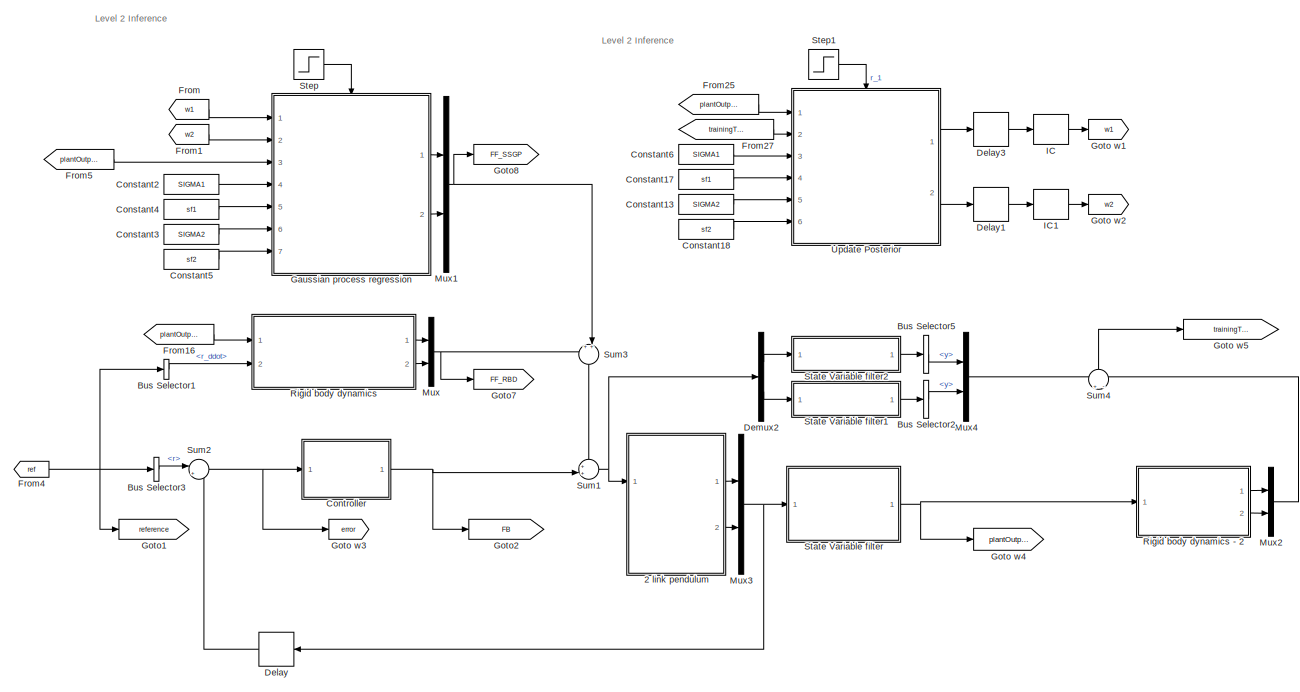
[diagram: root canvas - part 1/2, center side, full height]
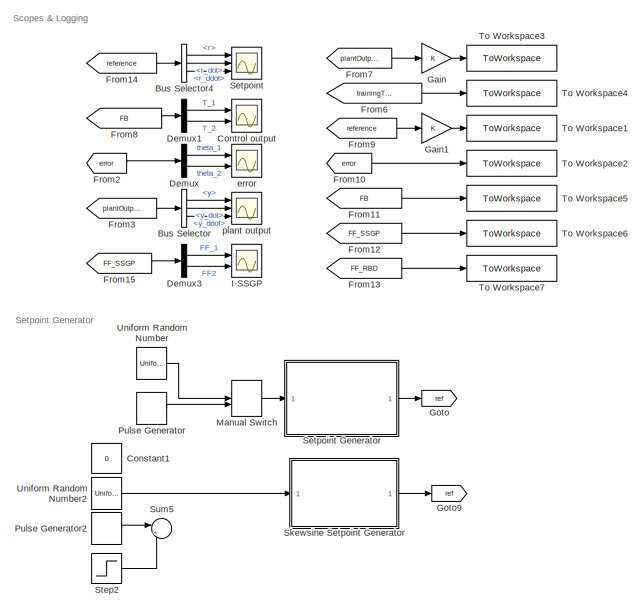
[diagram: root canvas - part 2/2, left side, full height]
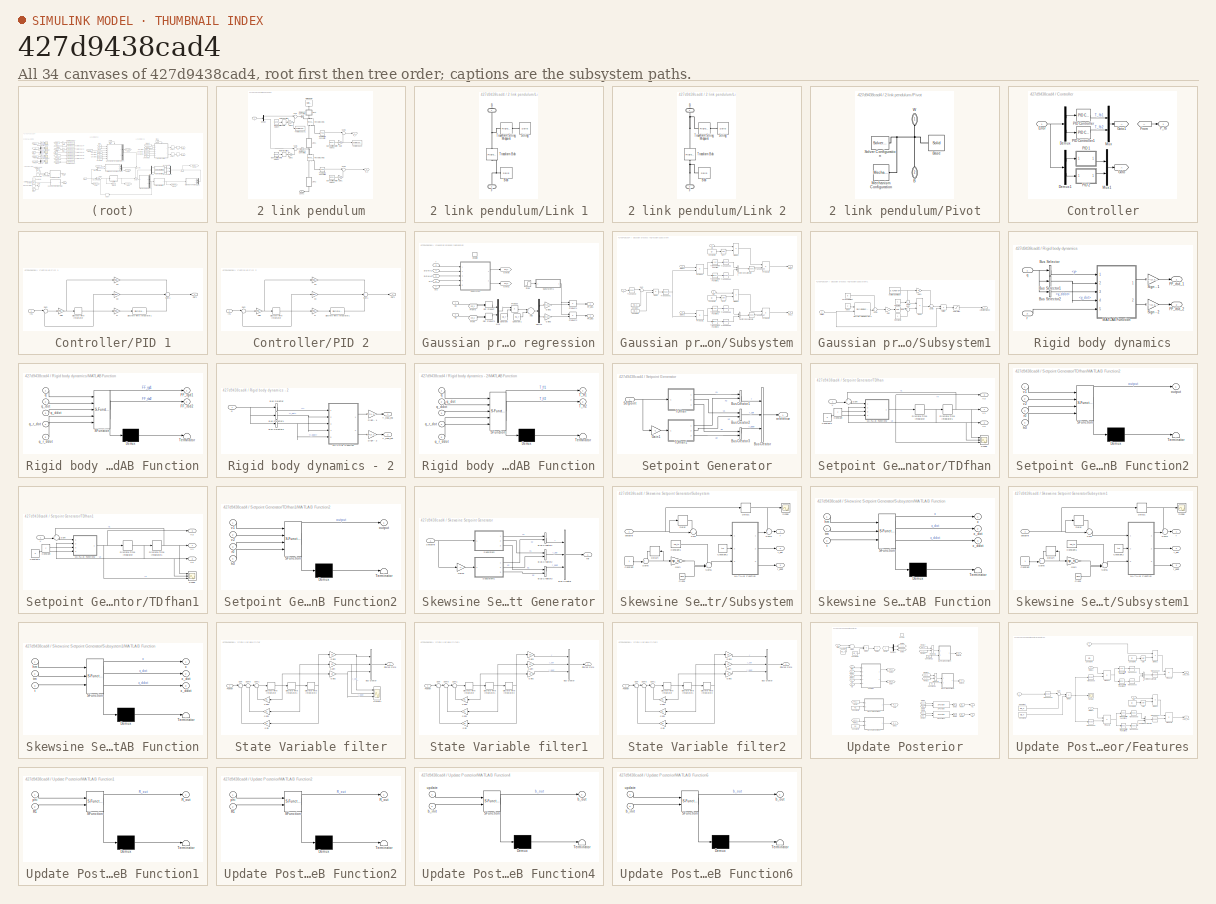
[diagram: thumbnail index - all 34 canvases of the model, root first then tree order]
MODEL slx_427d9438cad4
KIND model
CONFIG AbsTol = auto
CONFIG EnableMultiTasking = on
CONFIG FixedStep = ts
CONFIG MaxStep = auto
CONFIG MinStep = 1/1e5
CONFIG RelTol = 1e-3
CONFIG SampleTimeConstraint = Unconstrained
CONFIG Solver = FixedStepAuto
CONFIG SolverName = FixedStepAuto
CONFIG StartTime = 0.0
CONFIG StopTime = t_end
BLOCK [SubSystem] 2 link pendulum
  Ports = [1, 2, 0, 0, 0, 1]
  RequestExecContextInheritance = off
BLOCK [Reference] 2 link pendulum/Band-Limited White Noise1  REF=simulink/Sources/Band-Limited
White Noise
  Ports = [0, 1]
  SourceBlock = simulink/Sources/Band-Limited\nWhite Noise
  SourceProductBaseCode = SL
  SourceProductName = Simulink
  SourceType = Band-Limited White Noise.
BLOCK [Reference] 2 link pendulum/Band-Limited White Noise2  REF=simulink/Sources/Band-Limited
White Noise
  Ports = [0, 1]
  SourceBlock = simulink/Sources/Band-Limited\nWhite Noise
  SourceProductBaseCode = SL
  SourceProductName = Simulink
  SourceType = Band-Limited White Noise.
BLOCK [Reference] 2 link pendulum/Band-Limited White Noise3  REF=simulink/Sources/Band-Limited
White Noise
  Ports = [0, 1]
  SourceBlock = simulink/Sources/Band-Limited\nWhite Noise
  SourceProductBaseCode = SL
  SourceProductName = Simulink
  SourceType = Band-Limited White Noise.
BLOCK [Reference] 2 link pendulum/Band-Limited White Noise4  REF=simulink/Sources/Band-Limited
White Noise
  Ports = [0, 1]
  SourceBlock = simulink/Sources/Band-Limited\nWhite Noise
  SourceProductBaseCode = SL
  SourceProductName = Simulink
  SourceType = Band-Limited White Noise.
BLOCK [PMIOPort] 2 link pendulum/Conn1
  Side = Left
BLOCK [Demux] 2 link pendulum/Demux
  DisplayOption = bar
  Outputs = 2
  Ports = [1, 2]
BLOCK [Gain] 2 link pendulum/Gain
  Gain = noise.signal.gain(1)
  OutDataTypeStr = Inherit: Inherit via internal rule
  ParamDataTypeStr = Inherit: Inherit via internal rule
  SaturateOnIntegerOverflow = off
BLOCK [Gain] 2 link pendulum/Gain1
  Gain = noise.signal.gain(2)
  OutDataTypeStr = Inherit: Inherit via internal rule
  ParamDataTypeStr = Inherit: Inherit via internal rule
  SaturateOnIntegerOverflow = off
BLOCK [Gain] 2 link pendulum/Gain2
  Gain = noise.torque.gain(2)
  OutDataTypeStr = Inherit: Inherit via internal rule
  ParamDataTypeStr = Inherit: Inherit via internal rule
  SaturateOnIntegerOverflow = off
BLOCK [Gain] 2 link pendulum/Gain3
  Gain = noise.torque.gain(1)
  OutDataTypeStr = Inherit: Inherit via internal rule
  ParamDataTypeStr = Inherit: Inherit via internal rule
  SaturateOnIntegerOverflow = off
BLOCK [SubSystem] 2 link pendulum/Link 1
  Ports = [0, 0, 0, 0, 0, 1, 1]
  RequestExecContextInheritance = off
  Tag = CustomStyle
BLOCK [PMIOPort] 2 link pendulum/Link 1/B
  Side = Right
BLOCK [Reference] 2 link pendulum/Link 1/Bob  REF=sm_lib/Body Elements/Solid
  Ports = [0, 0, 0, 0, 0, 0, 1]
  SourceBlock = sm_lib/Body Elements/Solid
  SourceProductBaseCode = MS
  SourceProductName = Simscape Multibody
  SourceType = Solid
BLOCK [PMIOPort] 2 link pendulum/Link 1/F
  Port = 2
  Side = Left
BLOCK [Reference] 2 link pendulum/Link 1/String  REF=sm_lib/Body Elements/Solid
  Ports = [0, 0, 0, 0, 0, 0, 1]
  SourceBlock = sm_lib/Body Elements/Solid
  SourceProductBaseCode = MS
  SourceProductName = Simscape Multibody
  SourceType = Solid
BLOCK [Reference] 2 link pendulum/Link 1/Transform Bob   REF=sm_lib/Frames and
Transforms/Rigid
Transform
  Ports = [0, 0, 0, 0, 0, 1, 1]
  SourceBlock = sm_lib/Frames and\nTransforms/Rigid\nTransform
  SourceProductBaseCode = MS
  SourceProductName = Simscape Multibody
  SourceType = Rigid\nTransform
BLOCK [Reference] 2 link pendulum/Link 1/Transform String Midpoint  REF=sm_lib/Frames and
Transforms/Rigid
Transform
  Ports = [0, 0, 0, 0, 0, 1, 1]
  SourceBlock = sm_lib/Frames and\nTransforms/Rigid\nTransform
  SourceProductBaseCode = MS
  SourceProductName = Simscape Multibody
  SourceType = Rigid\nTransform
BLOCK [SubSystem] 2 link pendulum/Link 2
  Ports = [0, 0, 0, 0, 0, 1, 1]
  RequestExecContextInheritance = off
  Tag = CustomStyle
BLOCK [PMIOPort] 2 link pendulum/Link 2/B
  Side = Right
BLOCK [Reference] 2 link pendulum/Link 2/Bob  REF=sm_lib/Body Elements/Solid
  Ports = [0, 0, 0, 0, 0, 0, 1]
  SourceBlock = sm_lib/Body Elements/Solid
  SourceProductBaseCode = MS
  SourceProductName = Simscape Multibody
  SourceType = Solid
BLOCK [PMIOPort] 2 link pendulum/Link 2/F
  Port = 2
  Side = Left
BLOCK [Reference] 2 link pendulum/Link 2/String  REF=sm_lib/Body Elements/Solid
  Ports = [0, 0, 0, 0, 0, 0, 1]
  SourceBlock = sm_lib/Body Elements/Solid
  SourceProductBaseCode = MS
  SourceProductName = Simscape Multibody
  SourceType = Solid
BLOCK [Reference] 2 link pendulum/Link 2/Transform Bob   REF=sm_lib/Frames and
Transforms/Rigid
Transform
  Ports = [0, 0, 0, 0, 0, 1, 1]
  SourceBlock = sm_lib/Frames and\nTransforms/Rigid\nTransform
  SourceProductBaseCode = MS
  SourceProductName = Simscape Multibody
  SourceType = Rigid\nTransform
BLOCK [Reference] 2 link pendulum/Link 2/Transform String Midpoint  REF=sm_lib/Frames and
Transforms/Rigid
Transform
  Ports = [0, 0, 0, 0, 0, 1, 1]
  SourceBlock = sm_lib/Frames and\nTransforms/Rigid\nTransform
  SourceProductBaseCode = MS
  SourceProductName = Simscape Multibody
  SourceType = Rigid\nTransform
BLOCK [Reference] 2 link pendulum/PS-Simulink Converter  REF=nesl_utility/PS-Simulink
Converter
  Ports = [0, 1, 0, 0, 0, 1]
  SourceBlock = nesl_utility/PS-Simulink\nConverter
  SourceProductBaseCode = SS
  SourceProductName = Simscape
  SourceType = PS-Simulink\nConverter
BLOCK [Reference] 2 link pendulum/PS-Simulink Converter1  REF=nesl_utility/PS-Simulink
Converter
  Ports = [0, 1, 0, 0, 0, 1]
  SourceBlock = nesl_utility/PS-Simulink\nConverter
  SourceProductBaseCode = SS
  SourceProductName = Simscape
  SourceType = PS-Simulink\nConverter
BLOCK [SubSystem] 2 link pendulum/Pivot
  Ports = [0, 0, 0, 0, 0, 1, 1]
  RequestExecContextInheritance = off
  Tag = CustomStyle
BLOCK [PMIOPort] 2 link pendulum/Pivot/B
  Port = 2
  Side = Right
BLOCK [Reference] 2 link pendulum/Pivot/Base  REF=sm_lib/Body Elements/Solid
  Ports = [0, 0, 0, 0, 0, 0, 1]
  SourceBlock = sm_lib/Body Elements/Solid
  SourceProductBaseCode = MS
  SourceProductName = Simscape Multibody
  SourceType = Solid
BLOCK [Reference] 2 link pendulum/Pivot/Mechanism Configuration  REF=sm_lib/Utilities/Mechanism
Configuration
  Ports = [0, 0, 0, 0, 0, 0, 1]
  SourceBlock = sm_lib/Utilities/Mechanism\nConfiguration
  SourceProductBaseCode = MS
  SourceProductName = Simscape Multibody
  SourceType = Mechanism\nConfiguration
BLOCK [Reference] 2 link pendulum/Pivot/Solver Configuration  REF=nesl_utility/Solver
Configuration
  Ports = [0, 0, 0, 0, 0, 0, 1]
  SourceBlock = nesl_utility/Solver\nConfiguration
  SourceProductBaseCode = SS
  SourceProductName = Simscape
  SourceType = Solver\nConfiguration
BLOCK [PMIOPort] 2 link pendulum/Pivot/W
  Side = Left
BLOCK [RateTransition] 2 link pendulum/Rate Transition
  OutPortSampleTime = ts
BLOCK [RateTransition] 2 link pendulum/Rate Transition1
  OutPortSampleTime = ts
BLOCK [Reference] 2 link pendulum/Revolute Joint 1  REF=sm_lib/Joints/Revolute Joint
  Ports = [0, 0, 0, 0, 0, 2, 2]
  SourceBlock = sm_lib/Joints/Revolute Joint
  SourceProductBaseCode = MS
  SourceProductName = Simscape Multibody
  SourceType = Revolute Joint
BLOCK [Reference] 2 link pendulum/Revolute Joint 2  REF=sm_lib/Joints/Revolute Joint
  Ports = [0, 0, 0, 0, 0, 2, 2]
  SourceBlock = sm_lib/Joints/Revolute Joint
  SourceProductBaseCode = MS
  SourceProductName = Simscape Multibody
  SourceType = Revolute Joint
BLOCK [Reference] 2 link pendulum/Simulink-PS Converter  REF=nesl_utility/Simulink-PS
Converter
  Ports = [1, 0, 0, 0, 0, 0, 1]
  SourceBlock = nesl_utility/Simulink-PS\nConverter
  SourceProductBaseCode = SS
  SourceProductName = Simscape
  SourceType = Simulink-PS\nConverter
BLOCK [Reference] 2 link pendulum/Simulink-PS Converter1  REF=nesl_utility/Simulink-PS
Converter
  Ports = [1, 0, 0, 0, 0, 0, 1]
  SourceBlock = nesl_utility/Simulink-PS\nConverter
  SourceProductBaseCode = SS
  SourceProductName = Simscape
  SourceType = Simulink-PS\nConverter
BLOCK [Sum] 2 link pendulum/Sum
  IconShape = round
  InputSameDT = off
  Inputs = |++
  OutDataTypeStr = Inherit: Inherit via internal rule
  Ports = [2, 1]
  SaturateOnIntegerOverflow = off
BLOCK [Sum] 2 link pendulum/Sum1
  IconShape = round
  InputSameDT = off
  Inputs = |++
  OutDataTypeStr = Inherit: Inherit via internal rule
  Ports = [2, 1]
  SaturateOnIntegerOverflow = off
BLOCK [Sum] 2 link pendulum/Sum2
  IconShape = round
  InputSameDT = off
  Inputs = |++
  OutDataTypeStr = Inherit: Inherit via internal rule
  Ports = [2, 1]
  SaturateOnIntegerOverflow = off
BLOCK [Sum] 2 link pendulum/Sum3
  IconShape = round
  InputSameDT = off
  Inputs = |++
  OutDataTypeStr = Inherit: Inherit via internal rule
  Ports = [2, 1]
  SaturateOnIntegerOverflow = off
BLOCK [Inport] 2 link pendulum/T
  IconDisplay = Port number
BLOCK [ToWorkspace] 2 link pendulum/To Workspace
  FixptAsFi = on
  MaxDataPoints = inf
  Ports = [1]
  SampleTime = -1
  Save2DSignal = 3-D array (concatenate along third dimension)
  SaveFormat = Timeseries
  VariableName = noise_vec
BLOCK [ToWorkspace] 2 link pendulum/To Workspace1
  FixptAsFi = on
  MaxDataPoints = inf
  Ports = [1]
  SampleTime = -1
  Save2DSignal = 3-D array (concatenate along third dimension)
  SaveFormat = Timeseries
  VariableName = noise_input
BLOCK [Reference] 2 link pendulum/World Frame  REF=sm_lib/Frames and
Transforms/World Frame
  Ports = [0, 0, 0, 0, 0, 0, 1]
  SourceBlock = sm_lib/Frames and\nTransforms/World Frame
  SourceProductBaseCode = MS
  SourceProductName = Simscape Multibody
  SourceType = World Frame
BLOCK [Outport] 2 link pendulum/q_1
  IconDisplay = Port number
  SampleTime = ts
BLOCK [Outport] 2 link pendulum/q_2
  IconDisplay = Port number
  Port = 2
  SampleTime = ts
BLOCK [BusSelector] Bus Selector
  OutputAsBus = off
  OutputSignals = y,y_dot,y_ddot
  Ports = [1, 3]
BLOCK [BusSelector] Bus Selector1
  OutputAsBus = off
  OutputSignals = r_ddot
  Ports = [1, 1]
BLOCK [BusSelector] Bus Selector2
  OutputAsBus = off
  OutputSignals = y
  Ports = [1, 1]
BLOCK [BusSelector] Bus Selector3
  OutputAsBus = off
  OutputSignals = r
  Ports = [1, 1]
BLOCK [BusSelector] Bus Selector4
  OutputAsBus = off
  OutputSignals = r,r_dot,r_ddot
  Ports = [1, 3]
BLOCK [BusSelector] Bus Selector5
  OutputAsBus = off
  OutputSignals = y
  Ports = [1, 1]
BLOCK [Constant] Constant1
  SampleTime = sp_ts
  Value = 0
BLOCK [Constant] Constant13
  Value = SIGMA2
BLOCK [Constant] Constant17
  Value = sf1
BLOCK [Constant] Constant18
  Value = sf2
BLOCK [Constant] Constant2
  Value = SIGMA1
BLOCK [Constant] Constant3
  Value = SIGMA2
BLOCK [Constant] Constant4
  Value = sf1
BLOCK [Constant] Constant5
  Value = sf2
BLOCK [Constant] Constant6
  Value = SIGMA1
BLOCK [Scope] Control output
  Floating = off
  NumInputPorts = 2
  Ports = [2]
  ScopeSpecificationString = Simulink.scopes.TimeScopeBlockCfg('CurrentConfiguration', extmgr.ConfigurationSet(extmgr.Configuration('Core','General UI',true),extmgr.Configuration('Core','Source UI',true),extmgr.Configuration('Sources','WiredSimulink',true,'DataLoggingVariableName','ControlOutput','DataLoggingSaveFormat','Array'),extmgr.Configuration('Visuals','Time Domain',true,'SerializedDisplays',{struct('MinYLimReal','-52....<+2114ch>
BLOCK [SubSystem] Controller
  Ports = [1, 1]
  RequestExecContextInheritance = off
BLOCK [Demux] Controller/Demux
  DisplayOption = bar
  Outputs = 2
  Ports = [1, 2]
BLOCK [Demux] Controller/Demux1
  Commented = on
  DisplayOption = bar
  Outputs = 2
  Ports = [1, 2]
BLOCK [Inport] Controller/Error
  IconDisplay = Port number
BLOCK [From] Controller/From
BLOCK [Goto] Controller/Goto
  Commented = on
BLOCK [Goto] Controller/Goto1
BLOCK [Mux] Controller/Mux
  DisplayOption = bar
  Inputs = 2
  Ports = [2, 1]
BLOCK [Mux] Controller/Mux1
  Commented = on
  DisplayOption = bar
  Inputs = 2
  Ports = [2, 1]
BLOCK [SubSystem] Controller/PID 1
  Commented = on
  Ports = [1, 1]
  RequestExecContextInheritance = off
BLOCK [DiscreteIntegrator] Controller/PID 1/Discrete-Time Integrator
  ICPrevOutput = DiscIntNeverNeededParam
  ICPrevScaledInput = DiscIntNeverNeededParam
  InitialConditionSetting = Auto
  Ports = [1, 1]
  SampleTime = ts
BLOCK [DiscreteIntegrator] Controller/PID 1/Discrete-Time Integrator1
  ICPrevOutput = DiscIntNeverNeededParam
  ICPrevScaledInput = DiscIntNeverNeededParam
  InitialConditionSetting = Auto
  IntegratorMethod = Integration: Trapezoidal
  LowerSaturationLimit = -I_limit
  Ports = [1, 1]
  SampleTime = ts
  UpperSaturationLimit = I_limit
BLOCK [Gain] Controller/PID 1/Gain
  Gain = 1/PID(1).tau_p
  OutDataTypeStr = Inherit: Inherit via internal rule
  ParamDataTypeStr = Inherit: Inherit via internal rule
  SaturateOnIntegerOverflow = off
BLOCK [Inport] Controller/PID 1/In1
  IconDisplay = Port number
BLOCK [Outport] Controller/PID 1/Out1
  IconDisplay = Port number
BLOCK [Sum] Controller/PID 1/Sum
  IconShape = round
  InputSameDT = off
  Inputs = |+-
  OutDataTypeStr = Inherit: Inherit via internal rule
  Ports = [2, 1]
  SaturateOnIntegerOverflow = off
BLOCK [Sum] Controller/PID 1/Sum1
  IconShape = round
  InputSameDT = off
  Inputs = +++
  OutDataTypeStr = Inherit: Inherit via internal rule
  Ports = [3, 1]
  SaturateOnIntegerOverflow = off
BLOCK [Gain] Controller/PID 1/kd
  Gain = PID(1).kp*PID(1).tau_z
  OutDataTypeStr = Inherit: Inherit via internal rule
  ParamDataTypeStr = Inherit: Inherit via internal rule
  SaturateOnIntegerOverflow = off
BLOCK [Gain] Controller/PID 1/ki
  Gain = PID(1).kp/PID(1).tau_i
  OutDataTypeStr = Inherit: Inherit via internal rule
  ParamDataTypeStr = Inherit: Inherit via internal rule
  SaturateOnIntegerOverflow = off
BLOCK [Gain] Controller/PID 1/kp
  Gain = PID(1).kp*(1+PID(1).tau_z/PID(1).tau_i)
  OutDataTypeStr = Inherit: Inherit via internal rule
  ParamDataTypeStr = Inherit: Inherit via internal rule
  SaturateOnIntegerOverflow = off
BLOCK [SubSystem] Controller/PID 2
  Commented = on
  Ports = [1, 1]
  RequestExecContextInheritance = off
BLOCK [DiscreteIntegrator] Controller/PID 2/Discrete-Time Integrator
  ICPrevOutput = DiscIntNeverNeededParam
  ICPrevScaledInput = DiscIntNeverNeededParam
  InitialConditionSetting = Auto
  Ports = [1, 1]
  SampleTime = ts
BLOCK [DiscreteIntegrator] Controller/PID 2/Discrete-Time Integrator1
  ICPrevOutput = DiscIntNeverNeededParam
  ICPrevScaledInput = DiscIntNeverNeededParam
  InitialConditionSetting = Auto
  IntegratorMethod = Integration: Trapezoidal
  LowerSaturationLimit = -I_limit
  Ports = [1, 1]
  SampleTime = ts
  UpperSaturationLimit = I_limit
BLOCK [Gain] Controller/PID 2/Gain
  Gain = 1/PID(2).tau_p
  OutDataTypeStr = Inherit: Inherit via internal rule
  ParamDataTypeStr = Inherit: Inherit via internal rule
  SaturateOnIntegerOverflow = off
BLOCK [Inport] Controller/PID 2/In1
  IconDisplay = Port number
BLOCK [Outport] Controller/PID 2/Out1
  IconDisplay = Port number
BLOCK [Sum] Controller/PID 2/Sum
  IconShape = round
  InputSameDT = off
  Inputs = |+-
  OutDataTypeStr = Inherit: Inherit via internal rule
  Ports = [2, 1]
  SaturateOnIntegerOverflow = off
BLOCK [Sum] Controller/PID 2/Sum1
  IconShape = round
  InputSameDT = off
  Inputs = +++
  OutDataTypeStr = Inherit: Inherit via internal rule
  Ports = [3, 1]
  SaturateOnIntegerOverflow = off
BLOCK [Gain] Controller/PID 2/kd
  Gain = PID(2).kp*PID(2).tau_z
  OutDataTypeStr = Inherit: Inherit via internal rule
  ParamDataTypeStr = Inherit: Inherit via internal rule
  SaturateOnIntegerOverflow = off
BLOCK [Gain] Controller/PID 2/ki
  Gain = PID(2).kp/PID(2).tau_i
  OutDataTypeStr = Inherit: Inherit via internal rule
  ParamDataTypeStr = Inherit: Inherit via internal rule
  SaturateOnIntegerOverflow = off
BLOCK [Gain] Controller/PID 2/kp
  Gain = PID(2).kp*(1+PID(2).tau_z/PID(2).tau_i)
  OutDataTypeStr = Inherit: Inherit via internal rule
  ParamDataTypeStr = Inherit: Inherit via internal rule
  SaturateOnIntegerOverflow = off
BLOCK [Reference] Controller/PID Controller  REF=simulink/Continuous/PID Controller
  Ports = [1, 1]
  SourceBlock = simulink/Continuous/PID Controller
  SourceProductBaseCode = SL
  SourceProductName = Simulink
  SourceType = PID 1dof
BLOCK [Reference] Controller/PID Controller1  REF=simulink/Continuous/PID Controller
  Ports = [1, 1]
  SourceBlock = simulink/Continuous/PID Controller
  SourceProductBaseCode = SL
  SourceProductName = Simulink
  SourceType = PID 1dof
BLOCK [Outport] Controller/P_fb
  IconDisplay = Port number
BLOCK [Delay] Delay
  Commented = through
  DelayLength = 1
  InitialCondition = 0
  InputPortMap = u0
  Ports = [1, 1]
BLOCK [Delay] Delay1
  DelayLength = 1
  InitialCondition = 0
  InputPortMap = u0
  Ports = [1, 1]
BLOCK [Delay] Delay3
  DelayLength = 1
  InitialCondition = 0
  InputPortMap = u0
  Ports = [1, 1]
BLOCK [Demux] Demux
  DisplayOption = bar
  Outputs = 2
  Ports = [1, 2]
BLOCK [Demux] Demux1
  DisplayOption = bar
  Outputs = 2
  Ports = [1, 2]
BLOCK [Demux] Demux2
  DisplayOption = bar
  Outputs = 2
  Ports = [1, 2]
BLOCK [Demux] Demux3
  DisplayOption = bar
  Outputs = 2
  Ports = [1, 2]
BLOCK [From] From
  GotoTag = w1
BLOCK [From] From1
  GotoTag = w2
BLOCK [From] From10
  GotoTag = error
BLOCK [From] From11
  GotoTag = FB
BLOCK [From] From12
  GotoTag = FF_SSGP
BLOCK [From] From13
  GotoTag = FF_RBD
BLOCK [From] From14
  GotoTag = reference
BLOCK [From] From15
  GotoTag = FF_SSGP
BLOCK [From] From16
  GotoTag = plantOutput
BLOCK [From] From2
  GotoTag = error
BLOCK [From] From25
  GotoTag = plantOutput
BLOCK [From] From27
  GotoTag = trainingTarget
BLOCK [From] From3
  GotoTag = plantOutput
BLOCK [From] From4
  GotoTag = ref
BLOCK [From] From5
  GotoTag = plantOutput
BLOCK [From] From6
  GotoTag = trainingTarget
BLOCK [From] From7
  GotoTag = plantOutput
BLOCK [From] From8
  GotoTag = FB
BLOCK [From] From9
  GotoTag = reference
BLOCK [Gain] Gain
  OutDataTypeStr = Inherit: Inherit via internal rule
  ParamDataTypeStr = Inherit: Inherit via internal rule
  SaturateOnIntegerOverflow = off
BLOCK [Gain] Gain1
  OutDataTypeStr = Inherit: Inherit via internal rule
  ParamDataTypeStr = Inherit: Inherit via internal rule
  SaturateOnIntegerOverflow = off
BLOCK [SubSystem] Gaussian process regression
  Ports = [7, 2, 1]
  RequestExecContextInheritance = off
BLOCK [Sum] Gaussian process regression/Add
  InputSameDT = off
  OutDataTypeStr = Inherit: Inherit via internal rule
  Ports = [2, 1]
  SaturateOnIntegerOverflow = off
BLOCK [Constant] Gaussian process regression/Constant
  SampleTime = ts
  Value = sig_Y
  VectorParams1D = off
BLOCK [Constant] Gaussian process regression/Constant1
  SampleTime = ts
  Value = mu_Y
  VectorParams1D = off
BLOCK [Demux] Gaussian process regression/Demux
  DisplayOption = bar
  Outputs = 2
  Ports = [1, 2]
BLOCK [DotProduct] Gaussian process regression/Dot Product
  InputSameDT = off
  OutDataTypeStr = Inherit: Inherit via internal rule
BLOCK [DotProduct] Gaussian process regression/Dot Product1
  InputSameDT = off
  OutDataTypeStr = Inherit: Inherit via internal rule
BLOCK [EnablePort] Gaussian process regression/Enable
  Ports = []
BLOCK [Outport] Gaussian process regression/FF_gp1
  IconDisplay = Port number
  SampleTime = ts
BLOCK [Outport] Gaussian process regression/FF_gp2
  IconDisplay = Port number
  Port = 2
  SampleTime = ts
BLOCK [From] Gaussian process regression/From
  GotoTag = phi_2
BLOCK [From] Gaussian process regression/From5
  GotoTag = phi_1
BLOCK [Gain] Gaussian process regression/Gain2
  Gain = FF(2).sign(1)*FF(2).gain
  OutDataTypeStr = Inherit: Inherit via internal rule
  ParamDataTypeStr = Inherit: Inherit via internal rule
  SaturateOnIntegerOverflow = off
BLOCK [Gain] Gaussian process regression/Gain3
  Gain = FF(2).sign(2)*FF(2).gain
  OutDataTypeStr = Inherit: Inherit via internal rule
  ParamDataTypeStr = Inherit: Inherit via internal rule
  SaturateOnIntegerOverflow = off
BLOCK [Goto] Gaussian process regression/Goto1
  GotoTag = phi_2
BLOCK [Goto] Gaussian process regression/Goto6
  GotoTag = phi_1
BLOCK [Mux] Gaussian process regression/Mux
  DisplayOption = bar
  Inputs = 2
  Ports = [2, 1]
BLOCK [Product] Gaussian process regression/Product
  InputSameDT = off
  OutDataTypeStr = Inherit: Inherit via internal rule
  Ports = [2, 1]
  RndMeth = Floor
  SaturateOnIntegerOverflow = off
BLOCK [Product] Gaussian process regression/Product1
  InputSameDT = off
  OutDataTypeStr = Inherit: Inherit via internal rule
  Ports = [2, 1]
  RndMeth = Floor
  SaturateOnIntegerOverflow = off
BLOCK [Product] Gaussian process regression/Product2
  InputSameDT = off
  OutDataTypeStr = Inherit: Inherit via internal rule
  Ports = [2, 1]
  RndMeth = Floor
  SaturateOnIntegerOverflow = off
BLOCK [Inport] Gaussian process regression/SIGMA1
  IconDisplay = Port number
  Port = 4
BLOCK [Inport] Gaussian process regression/SIGMA2
  IconDisplay = Port number
  Port = 6
BLOCK [Step] Gaussian process regression/Step
  SampleTime = ts
  Time = t_predict
BLOCK [SubSystem] Gaussian process regression/Subsystem
  Ports = [5, 2]
  RequestExecContextInheritance = off
BLOCK [Constant] Gaussian process regression/Subsystem/Constant
  SampleTime = -1
  Value = mu_X
  VectorParams1D = off
BLOCK [Constant] Gaussian process regression/Subsystem/Constant1
  SampleTime = -1
  Value = sig_X
  VectorParams1D = off
BLOCK [Constant] Gaussian process regression/Subsystem/Constant6
  SampleTime = -1
  Value = D
BLOCK [Constant] Gaussian process regression/Subsystem/Constant8
  SampleTime = -1
  Value = D
BLOCK [Product] Gaussian process regression/Subsystem/Divide
  InputSameDT = off
  Inputs = */
  OutDataTypeStr = Inherit: Inherit via internal rule
  Ports = [2, 1]
  RndMeth = Floor
  SaturateOnIntegerOverflow = off
BLOCK [Product] Gaussian process regression/Subsystem/Divide2
  InputSameDT = off
  Inputs = */
  OutDataTypeStr = Inherit: Inherit via internal rule
  Ports = [2, 1]
  RndMeth = Floor
  SaturateOnIntegerOverflow = off
BLOCK [Product] Gaussian process regression/Subsystem/Divide3
  InputSameDT = off
  Inputs = */
  OutDataTypeStr = Inherit: Inherit via internal rule
  Ports = [2, 1]
  RndMeth = Floor
  SaturateOnIntegerOverflow = off
BLOCK [Product] Gaussian process regression/Subsystem/Product
  InputSameDT = off
  Multiplication = Matrix(*)
  OutDataTypeStr = Inherit: Inherit via internal rule
  Ports = [2, 1]
  RndMeth = Floor
  SaturateOnIntegerOverflow = off
BLOCK [Product] Gaussian process regression/Subsystem/Product1
  InputSameDT = off
  Multiplication = Matrix(*)
  OutDataTypeStr = Inherit: Inherit via internal rule
  Ports = [2, 1]
  RndMeth = Floor
  SaturateOnIntegerOverflow = off
BLOCK [Product] Gaussian process regression/Subsystem/Product2
  InputSameDT = off
  OutDataTypeStr = Inherit: Inherit via internal rule
  Ports = [2, 1]
  RndMeth = Floor
  SaturateOnIntegerOverflow = off
BLOCK [Product] Gaussian process regression/Subsystem/Product3
  InputSameDT = off
  OutDataTypeStr = Inherit: Inherit via internal rule
  Ports = [2, 1]
  RndMeth = Floor
  SaturateOnIntegerOverflow = off
BLOCK [Inport] Gaussian process regression/Subsystem/SIGMA1
  IconDisplay = Port number
  Port = 2
BLOCK [Inport] Gaussian process regression/Subsystem/SIGMA2
  IconDisplay = Port number
  Port = 3
BLOCK [Sqrt] Gaussian process regression/Subsystem/Sqrt
BLOCK [Sqrt] Gaussian process regression/Subsystem/Sqrt1
BLOCK [Sum] Gaussian process regression/Subsystem/Sum
  IconShape = round
  InputSameDT = off
  Inputs = |+-
  OutDataTypeStr = Inherit: Inherit via internal rule
  Ports = [2, 1]
  SaturateOnIntegerOverflow = off
BLOCK [Math] Gaussian process regression/Subsystem/Transpose
  Operator = transpose
  Ports = [1, 1]
BLOCK [Math] Gaussian process regression/Subsystem/Transpose1
  Operator = transpose
  Ports = [1, 1]
BLOCK [Math] Gaussian process regression/Subsystem/Transpose2
  Operator = transpose
  Ports = [1, 1]
BLOCK [Math] Gaussian process regression/Subsystem/Transpose3
  Operator = transpose
  Ports = [1, 1]
BLOCK [Math] Gaussian process regression/Subsystem/Transpose4
  Operator = transpose
  Ports = [1, 1]
BLOCK [Math] Gaussian process regression/Subsystem/Transpose5
  Operator = transpose
  Ports = [1, 1]
BLOCK [Math] Gaussian process regression/Subsystem/Transpose6
  Operator = transpose
  Ports = [1, 1]
BLOCK [Math] Gaussian process regression/Subsystem/Transpose7
  Operator = transpose
  Ports = [1, 1]
BLOCK [Trigonometry] Gaussian process regression/Subsystem/Trigonometric Function
  Operator = cos
  Ports = [1, 1]
BLOCK [Trigonometry] Gaussian process regression/Subsystem/Trigonometric Function1
  Ports = [1, 1]
BLOCK [Trigonometry] Gaussian process regression/Subsystem/Trigonometric Function2
  Operator = cos
  Ports = [1, 1]
BLOCK [Trigonometry] Gaussian process regression/Subsystem/Trigonometric Function3
  Ports = [1, 1]
BLOCK [Concatenate] Gaussian process regression/Subsystem/Vector Concatenate
  Ports = [2, 1]
BLOCK [Concatenate] Gaussian process regression/Subsystem/Vector Concatenate1
  Ports = [2, 1]
BLOCK [Outport] Gaussian process regression/Subsystem/phi_1
  IconDisplay = Port number
BLOCK [Outport] Gaussian process regression/Subsystem/phi_2
  IconDisplay = Port number
  Port = 2
BLOCK [Inport] Gaussian process regression/Subsystem/sf1
  IconDisplay = Port number
  Port = 4
BLOCK [Inport] Gaussian process regression/Subsystem/sf2
  IconDisplay = Port number
  Port = 5
BLOCK [Inport] Gaussian process regression/Subsystem/y
  IconDisplay = Port number
BLOCK [SubSystem] Gaussian process regression/Subsystem1
  Ports = [1, 1]
  RequestExecContextInheritance = off
BLOCK [Outport] Gaussian process regression/Subsystem1/Activation Signal
  IconDisplay = Port number
BLOCK [Constant] Gaussian process regression/Subsystem1/Constant
BLOCK [Constant] Gaussian process regression/Subsystem1/Constant2
BLOCK [DiscreteIntegrator] Gaussian process regression/Subsystem1/Discrete-Time Integrator3
  ExternalReset = rising
  ICPrevOutput = DiscIntNeverNeededParam
  ICPrevScaledInput = DiscIntNeverNeededParam
  InitialConditionSetting = Auto
  IntegratorMethod = Integration: Trapezoidal
  LowerSaturationLimit = 0
  Ports = [2, 1]
  SampleTime = -1
  UpperSaturationLimit = 1
BLOCK [Product] Gaussian process regression/Subsystem1/Divide
  InputSameDT = off
  Inputs = */
  OutDataTypeStr = Inherit: Inherit via internal rule
  Ports = [2, 1]
  RndMeth = Floor
  SaturateOnIntegerOverflow = off
BLOCK [Math] Gaussian process regression/Subsystem1/Exp
  Ports = [1, 1]
BLOCK [Gain] Gaussian process regression/Subsystem1/Gain
  Gain = -1
  OutDataTypeStr = Inherit: Inherit via internal rule
  ParamDataTypeStr = Inherit: Inherit via internal rule
  SaturateOnIntegerOverflow = off
BLOCK [Gain] Gaussian process regression/Subsystem1/Gain1
  Gain = 1/2
  OutDataTypeStr = Inherit: Inherit via internal rule
  ParamDataTypeStr = Inherit: Inherit via internal rule
  SaturateOnIntegerOverflow = off
BLOCK [Product] Gaussian process regression/Subsystem1/Multiply
  InputSameDT = off
  OutDataTypeStr = Inherit: Inherit via internal rule
  Ports = [2, 1]
  RndMeth = Floor
  SaturateOnIntegerOverflow = off
BLOCK [Saturate] Gaussian process regression/Subsystem1/Saturation
  InputPortMap = u0
  LowerLimit = 0
  Ports = [1, 1]
  UpperLimit = 1
BLOCK [Sum] Gaussian process regression/Subsystem1/Sum
  IconShape = round
  InputSameDT = off
  Inputs = |++
  OutDataTypeStr = Inherit: Inherit via internal rule
  Ports = [2, 1]
  SaturateOnIntegerOverflow = off
BLOCK [Sum] Gaussian process regression/Subsystem1/Sum1
  IconShape = round
  InputSameDT = off
  Inputs = ++|
  OutDataTypeStr = Inherit: Inherit via internal rule
  Ports = [2, 1]
  SaturateOnIntegerOverflow = off
BLOCK [Sum] Gaussian process regression/Subsystem1/Sum2
  IconShape = round
  InputSameDT = off
  Inputs = -+|
  OutDataTypeStr = Inherit: Inherit via internal rule
  Ports = [2, 1]
  SaturateOnIntegerOverflow = off
BLOCK [Sum] Gaussian process regression/Subsystem1/Sum3
  IconShape = round
  InputSameDT = off
  Inputs = ++|
  OutDataTypeStr = Inherit: Inherit via internal rule
  Ports = [2, 1]
  SaturateOnIntegerOverflow = off
BLOCK [Inport] Gaussian process regression/Subsystem1/Switch
  IconDisplay = Port number
BLOCK [Constant] Gaussian process regression/Subsystem1/additional amplitude
  Value = 6.7140e-04
BLOCK [Constant] Gaussian process regression/Subsystem1/horizontal offset
  Value = -8
BLOCK [Constant] Gaussian process regression/Subsystem1/slope
  Value = 2
BLOCK [Inport] Gaussian process regression/r
  IconDisplay = Port number
  Port = 3
BLOCK [Inport] Gaussian process regression/sf1
  IconDisplay = Port number
  Port = 5
BLOCK [Inport] Gaussian process regression/sf2
  IconDisplay = Port number
  Port = 7
BLOCK [Inport] Gaussian process regression/w1
  IconDisplay = Port number
BLOCK [Inport] Gaussian process regression/w2
  IconDisplay = Port number
  Port = 2
BLOCK [Goto] Goto
  Commented = on
  GotoTag = ref
BLOCK [Goto] Goto w1
  GotoTag = w1
BLOCK [Goto] Goto w2
  GotoTag = w2
BLOCK [Goto] Goto w3
  GotoTag = error
BLOCK [Goto] Goto w4
  GotoTag = plantOutput
BLOCK [Goto] Goto w5
  GotoTag = trainingTarget
BLOCK [Goto] Goto1
  GotoTag = reference
BLOCK [Goto] Goto2
  GotoTag = FB
BLOCK [Goto] Goto7
  GotoTag = FF_RBD
BLOCK [Goto] Goto8
  GotoTag = FF_SSGP
BLOCK [Goto] Goto9
  GotoTag = ref
BLOCK [Scope] I-SSGP
  Floating = off
  NumInputPorts = 2
  Ports = [2]
  ScopeSpecificationString = Simulink.scopes.TimeScopeBlockCfg('CurrentConfiguration', extmgr.ConfigurationSet(extmgr.Configuration('Core','General UI',true),extmgr.Configuration('Core','Source UI',true),extmgr.Configuration('Sources','WiredSimulink',true,'DataLoggingVariableName','ScopeData2','DataLoggingSaveFormat','StructureWithTime'),extmgr.Configuration('Visuals','Time Domain',true,'SerializedDisplays',{struct('MinYLimRe...<+2057ch>
BLOCK [InitialCondition] IC
  Value = w1
BLOCK [InitialCondition] IC1
  Value = w2
BLOCK [ManualSwitch] Manual Switch
  Commented = on
BLOCK [Mux] Mux
  DisplayOption = bar
  Inputs = 2
  Ports = [2, 1]
BLOCK [Mux] Mux1
  DisplayOption = bar
  Inputs = 2
  Ports = [2, 1]
BLOCK [Mux] Mux2
  DisplayOption = bar
  Inputs = 2
  Ports = [2, 1]
BLOCK [Mux] Mux3
  DisplayOption = bar
  Inputs = 2
  Ports = [2, 1]
BLOCK [Mux] Mux4
  DisplayOption = bar
  Inputs = 2
  Ports = [2, 1]
BLOCK [DiscretePulseGenerator] Pulse Generator
  Amplitude = 20*pi/180
  Commented = on
  Period = sp_ts
  Ports = [0, 1]
  PulseType = Time based
  PulseWidth = 50
BLOCK [DiscretePulseGenerator] Pulse Generator2
  Amplitude = 80*pi/180
  Period = 4
  Ports = [0, 1]
  PulseWidth = 2
  SampleTime = sp_ts
BLOCK [SubSystem] Rigid body dynamics
  Ports = [2, 2]
  RequestExecContextInheritance = off
BLOCK [SubSystem] Rigid body dynamics - 2
  Ports = [1, 2]
  RequestExecContextInheritance = off
BLOCK [BusSelector] Rigid body dynamics - 2/Bus Selector
  OutputAsBus = off
  OutputSignals = y
  Ports = [1, 1]
BLOCK [BusSelector] Rigid body dynamics - 2/Bus Selector1
  OutputAsBus = off
  OutputSignals = y_dot
  Ports = [1, 1]
BLOCK [BusSelector] Rigid body dynamics - 2/Bus Selector2
  OutputAsBus = off
  OutputSignals = y_ddot
  Ports = [1, 1]
BLOCK [SubSystem] Rigid body dynamics - 2/MATLAB Function
  ErrorFcn = Stateflow.Translate.translate
  PermitHierarchicalResolution = ExplicitOnly
  Ports = [5, 2]
  RequestExecContextInheritance = off
  SFBlockType = MATLAB Function
  TreatAsAtomicUnit = on
BLOCK [Demux] Rigid body dynamics - 2/MATLAB Function/ Demux 
  Outputs = 1
  Ports = [1, 1]
BLOCK [S-Function] Rigid body dynamics - 2/MATLAB Function/ SFunction 
  EnableBusSupport = on
  FunctionName = sf_sfun
  Parameters = param
  PortCounts = [5 3]
  Ports = [5, 3]
  SFcnIsStateOwnerBlock = off
  SFunctionDeploymentMode = off
  Tag = Stateflow S-Function Coupled_GP_fit 3
BLOCK [Terminator] Rigid body dynamics - 2/MATLAB Function/ Terminator 
BLOCK [Outport] Rigid body dynamics - 2/MATLAB Function/T_ff1
  IconDisplay = Port number
BLOCK [Outport] Rigid body dynamics - 2/MATLAB Function/T_ff2
  IconDisplay = Port number
  Port = 2
BLOCK [Inport] Rigid body dynamics - 2/MATLAB Function/q
  IconDisplay = Port number
BLOCK [Inport] Rigid body dynamics - 2/MATLAB Function/q_ddot
  IconDisplay = Port number
  Port = 3
BLOCK [Inport] Rigid body dynamics - 2/MATLAB Function/q_dot
  IconDisplay = Port number
  Port = 2
BLOCK [Inport] Rigid body dynamics - 2/MATLAB Function/q_r_ddot
  IconDisplay = Port number
  Port = 5
BLOCK [Inport] Rigid body dynamics - 2/MATLAB Function/q_r_dot
  IconDisplay = Port number
  Port = 4
BLOCK [Gain] Rigid body dynamics - 2/Sign - 1
  Gain = FF(1).sign(1)*FF(1).gain
  OutDataTypeStr = Inherit: Inherit via internal rule
  ParamDataTypeStr = Inherit: Inherit via internal rule
  SaturateOnIntegerOverflow = off
BLOCK [Gain] Rigid body dynamics - 2/Sign - 2
  Gain = FF(2).sign(2)*FF(1).gain
  OutDataTypeStr = Inherit: Inherit via internal rule
  ParamDataTypeStr = Inherit: Inherit via internal rule
  SaturateOnIntegerOverflow = off
BLOCK [Outport] Rigid body dynamics - 2/T_rbd1_est
  IconDisplay = Port number
BLOCK [Outport] Rigid body dynamics - 2/T_rbd2_est
  IconDisplay = Port number
  Port = 2
BLOCK [Inport] Rigid body dynamics - 2/q
  IconDisplay = Port number
BLOCK [BusSelector] Rigid body dynamics/Bus Selector
  OutputAsBus = off
  OutputSignals = y
  Ports = [1, 1]
BLOCK [BusSelector] Rigid body dynamics/Bus Selector1
  OutputAsBus = off
  OutputSignals = y_dot
  Ports = [1, 1]
BLOCK [BusSelector] Rigid body dynamics/Bus Selector2
  OutputAsBus = off
  OutputSignals = y_ddot
  Ports = [1, 1]
BLOCK [Outport] Rigid body dynamics/FF_rbd_1
  IconDisplay = Port number
BLOCK [Outport] Rigid body dynamics/FF_rbd_2
  IconDisplay = Port number
  Port = 2
BLOCK [SubSystem] Rigid body dynamics/MATLAB Function
  ErrorFcn = Stateflow.Translate.translate
  PermitHierarchicalResolution = ExplicitOnly
  Ports = [5, 2]
  RequestExecContextInheritance = off
  SFBlockType = MATLAB Function
  TreatAsAtomicUnit = on
BLOCK [Demux] Rigid body dynamics/MATLAB Function/ Demux 
  Outputs = 1
  Ports = [1, 1]
BLOCK [S-Function] Rigid body dynamics/MATLAB Function/ SFunction 
  EnableBusSupport = on
  FunctionName = sf_sfun
  Parameters = param
  PortCounts = [5 3]
  Ports = [5, 3]
  SFcnIsStateOwnerBlock = off
  SFunctionDeploymentMode = off
  Tag = Stateflow S-Function Coupled_GP_fit 1
BLOCK [Terminator] Rigid body dynamics/MATLAB Function/ Terminator 
BLOCK [Outport] Rigid body dynamics/MATLAB Function/FF_rbd2
  IconDisplay = Port number
  Port = 2
BLOCK [Outport] Rigid body dynamics/MATLAB Function/FF_rgd1
  IconDisplay = Port number
BLOCK [Inport] Rigid body dynamics/MATLAB Function/q
  IconDisplay = Port number
BLOCK [Inport] Rigid body dynamics/MATLAB Function/q_ddot
  IconDisplay = Port number
  Port = 3
BLOCK [Inport] Rigid body dynamics/MATLAB Function/q_dot
  IconDisplay = Port number
  Port = 2
BLOCK [Inport] Rigid body dynamics/MATLAB Function/q_r_ddot
  IconDisplay = Port number
  Port = 5
BLOCK [Inport] Rigid body dynamics/MATLAB Function/q_r_dot
  IconDisplay = Port number
  Port = 4
BLOCK [Gain] Rigid body dynamics/Sign - 1
  Gain = FF(1).sign*FF(1).gain
  OutDataTypeStr = Inherit: Inherit via internal rule
  ParamDataTypeStr = Inherit: Inherit via internal rule
  SaturateOnIntegerOverflow = off
BLOCK [Gain] Rigid body dynamics/Sign - 2
  Gain = FF(1).sign*FF(1).gain
  OutDataTypeStr = Inherit: Inherit via internal rule
  ParamDataTypeStr = Inherit: Inherit via internal rule
  SaturateOnIntegerOverflow = off
BLOCK [Inport] Rigid body dynamics/q
  IconDisplay = Port number
BLOCK [Inport] Rigid body dynamics/r
  IconDisplay = Port number
  Port = 2
BLOCK [Scope] Setpoint
  Floating = off
  NumInputPorts = 3
  Ports = [3]
  ScopeSpecificationString = Simulink.scopes.TimeScopeBlockCfg('CurrentConfiguration', extmgr.ConfigurationSet(extmgr.Configuration('Core','General UI',true),extmgr.Configuration('Core','Source UI',true),extmgr.Configuration('Sources','WiredSimulink',true,'DataLoggingVariableName','ScopeData1','DataLoggingSaveFormat','StructureWithTime'),extmgr.Configuration('Visuals','Time Domain',true,'SerializedDisplays',{struct('MinYLimRe...<+2805ch>
BLOCK [SubSystem] Setpoint Generator
  Commented = on
  Ports = [1, 1]
  RequestExecContextInheritance = off
BLOCK [BusCreator] Setpoint Generator/Bus Creator
  DisplayOption = bar
  InheritFromInputs = on
  Inputs = 3
  Ports = [3, 1]
BLOCK [BusCreator] Setpoint Generator/Bus Creator1
  DisplayOption = bar
  InheritFromInputs = on
  Inputs = 2
  Ports = [2, 1]
BLOCK [BusCreator] Setpoint Generator/Bus Creator2
  DisplayOption = bar
  InheritFromInputs = on
  Inputs = 2
  Ports = [2, 1]
BLOCK [BusCreator] Setpoint Generator/Bus Creator3
  DisplayOption = bar
  InheritFromInputs = on
  Inputs = 2
  Ports = [2, 1]
BLOCK [Gain] Setpoint Generator/Gain1
  Gain = -1
  OutDataTypeStr = Inherit: Inherit via internal rule
  ParamDataTypeStr = Inherit: Inherit via internal rule
  SaturateOnIntegerOverflow = off
BLOCK [Inport] Setpoint Generator/Setpoint
  IconDisplay = Port number
BLOCK [SubSystem] Setpoint Generator/TDfhan
  Ports = [1, 3]
  RequestExecContextInheritance = off
BLOCK [Constant] Setpoint Generator/TDfhan/Constant
  Value = r
BLOCK [Constant] Setpoint Generator/TDfhan/Constant1
  Value = h
BLOCK [DiscreteIntegrator] Setpoint Generator/TDfhan/Discrete-Time Integrator
  ICPrevOutput = DiscIntNeverNeededParam
  ICPrevScaledInput = DiscIntNeverNeededParam
  InitialConditionSetting = Auto
  Ports = [1, 1]
  SampleTime = ts
  gainval = 1
BLOCK [DiscreteIntegrator] Setpoint Generator/TDfhan/Discrete-Time Integrator1
  ICPrevOutput = DiscIntNeverNeededParam
  ICPrevScaledInput = DiscIntNeverNeededParam
  InitialConditionSetting = Auto
  Ports = [1, 1]
  SampleTime = ts
  gainval = 1
BLOCK [SubSystem] Setpoint Generator/TDfhan/MATLAB Function2
  ErrorFcn = Stateflow.Translate.translate
  PermitHierarchicalResolution = ExplicitOnly
  Ports = [4, 1]
  RequestExecContextInheritance = off
  SFBlockType = MATLAB Function
  TreatAsAtomicUnit = on
BLOCK [Demux] Setpoint Generator/TDfhan/MATLAB Function2/ Demux 
  Outputs = 1
  Ports = [1, 1]
BLOCK [S-Function] Setpoint Generator/TDfhan/MATLAB Function2/ SFunction 
  EnableBusSupport = on
  FunctionName = sf_sfun
  PortCounts = [4 2]
  Ports = [4, 2]
  SFcnIsStateOwnerBlock = off
  SFunctionDeploymentMode = off
  Tag = Stateflow S-Function Coupled_GP_fit 10
BLOCK [Terminator] Setpoint Generator/TDfhan/MATLAB Function2/ Terminator 
BLOCK [Inport] Setpoint Generator/TDfhan/MATLAB Function2/h0
  IconDisplay = Port number
  Port = 4
BLOCK [Outport] Setpoint Generator/TDfhan/MATLAB Function2/output
  IconDisplay = Port number
BLOCK [Inport] Setpoint Generator/TDfhan/MATLAB Function2/r0
  IconDisplay = Port number
  Port = 3
BLOCK [Inport] Setpoint Generator/TDfhan/MATLAB Function2/v1
  IconDisplay = Port number
BLOCK [Inport] Setpoint Generator/TDfhan/MATLAB Function2/v2
  IconDisplay = Port number
  Port = 2
BLOCK [Scope] Setpoint Generator/TDfhan/Scope
  Floating = off
  NumInputPorts = 3
  Ports = [3]
  ScopeSpecificationString = Simulink.scopes.TimeScopeBlockCfg('CurrentConfiguration', extmgr.ConfigurationSet(extmgr.Configuration('Core','General UI',true),extmgr.Configuration('Core','Source UI',true),extmgr.Configuration('Sources','WiredSimulink',true,'DataLoggingVariableName','ScopeData1'),extmgr.Configuration('Visuals','Time Domain',true,'SerializedDisplays',{struct('MinYLimReal','-1.00524','MaxYLimReal','0.95358','YLab...<+2775ch>
BLOCK [Sum] Setpoint Generator/TDfhan/Sum
  IconShape = round
  InputSameDT = off
  Inputs = +-|
  OutDataTypeStr = Inherit: Inherit via internal rule
  Ports = [2, 1]
  SaturateOnIntegerOverflow = off
BLOCK [Inport] Setpoint Generator/TDfhan/V
  IconDisplay = Port number
BLOCK [Outport] Setpoint Generator/TDfhan/V1
  IconDisplay = Port number
BLOCK [Outport] Setpoint Generator/TDfhan/V2
  IconDisplay = Port number
  Port = 2
BLOCK [Outport] Setpoint Generator/TDfhan/V3
  IconDisplay = Port number
  Port = 3
BLOCK [SubSystem] Setpoint Generator/TDfhan1
  Ports = [1, 3]
  RequestExecContextInheritance = off
BLOCK [Constant] Setpoint Generator/TDfhan1/Constant
  Value = r
BLOCK [Constant] Setpoint Generator/TDfhan1/Constant1
  Value = h
BLOCK [DiscreteIntegrator] Setpoint Generator/TDfhan1/Discrete-Time Integrator
  ICPrevOutput = DiscIntNeverNeededParam
  ICPrevScaledInput = DiscIntNeverNeededParam
  InitialConditionSetting = Auto
  Ports = [1, 1]
  SampleTime = ts
  gainval = 1
BLOCK [DiscreteIntegrator] Setpoint Generator/TDfhan1/Discrete-Time Integrator1
  ICPrevOutput = DiscIntNeverNeededParam
  ICPrevScaledInput = DiscIntNeverNeededParam
  InitialConditionSetting = Auto
  Ports = [1, 1]
  SampleTime = ts
  gainval = 1
BLOCK [SubSystem] Setpoint Generator/TDfhan1/MATLAB Function2
  ErrorFcn = Stateflow.Translate.translate
  PermitHierarchicalResolution = ExplicitOnly
  Ports = [4, 1]
  RequestExecContextInheritance = off
  SFBlockType = MATLAB Function
  TreatAsAtomicUnit = on
BLOCK [Demux] Setpoint Generator/TDfhan1/MATLAB Function2/ Demux 
  Outputs = 1
  Ports = [1, 1]
BLOCK [S-Function] Setpoint Generator/TDfhan1/MATLAB Function2/ SFunction 
  EnableBusSupport = on
  FunctionName = sf_sfun
  PortCounts = [4 2]
  Ports = [4, 2]
  SFcnIsStateOwnerBlock = off
  SFunctionDeploymentMode = off
  Tag = Stateflow S-Function Coupled_GP_fit 11
BLOCK [Terminator] Setpoint Generator/TDfhan1/MATLAB Function2/ Terminator 
BLOCK [Inport] Setpoint Generator/TDfhan1/MATLAB Function2/h0
  IconDisplay = Port number
  Port = 4
BLOCK [Outport] Setpoint Generator/TDfhan1/MATLAB Function2/output
  IconDisplay = Port number
BLOCK [Inport] Setpoint Generator/TDfhan1/MATLAB Function2/r0
  IconDisplay = Port number
  Port = 3
BLOCK [Inport] Setpoint Generator/TDfhan1/MATLAB Function2/v1
  IconDisplay = Port number
BLOCK [Inport] Setpoint Generator/TDfhan1/MATLAB Function2/v2
  IconDisplay = Port number
  Port = 2
BLOCK [Scope] Setpoint Generator/TDfhan1/Scope
  Floating = off
  NumInputPorts = 3
  Ports = [3]
  ScopeSpecificationString = Simulink.scopes.TimeScopeBlockCfg('CurrentConfiguration', extmgr.ConfigurationSet(extmgr.Configuration('Core','General UI',true),extmgr.Configuration('Core','Source UI',true),extmgr.Configuration('Sources','WiredSimulink',true,'DataLoggingVariableName','ScopeData1'),extmgr.Configuration('Visuals','Time Domain',true,'SerializedDisplays',{struct('MinYLimReal','-0.95358','MaxYLimReal','1.00524','YLab...<+2771ch>
BLOCK [Sum] Setpoint Generator/TDfhan1/Sum
  IconShape = round
  InputSameDT = off
  Inputs = +-|
  OutDataTypeStr = Inherit: Inherit via internal rule
  Ports = [2, 1]
  SaturateOnIntegerOverflow = off
BLOCK [Inport] Setpoint Generator/TDfhan1/V
  IconDisplay = Port number
BLOCK [Outport] Setpoint Generator/TDfhan1/V1
  IconDisplay = Port number
BLOCK [Outport] Setpoint Generator/TDfhan1/V2
  IconDisplay = Port number
  Port = 2
BLOCK [Outport] Setpoint Generator/TDfhan1/V3
  IconDisplay = Port number
  Port = 3
BLOCK [Outport] Setpoint Generator/reference
  IconDisplay = Port number
BLOCK [SubSystem] Skewsine Setpoint Generator
  Ports = [1, 1]
  RequestExecContextInheritance = off
BLOCK [BusCreator] Skewsine Setpoint Generator/Bus Creator
  DisplayOption = bar
  InheritFromInputs = on
  Inputs = 3
  Ports = [3, 1]
BLOCK [BusCreator] Skewsine Setpoint Generator/Bus Creator1
  DisplayOption = bar
  InheritFromInputs = on
  Inputs = 2
  Ports = [2, 1]
BLOCK [BusCreator] Skewsine Setpoint Generator/Bus Creator2
  DisplayOption = bar
  InheritFromInputs = on
  Inputs = 2
  Ports = [2, 1]
BLOCK [BusCreator] Skewsine Setpoint Generator/Bus Creator3
  DisplayOption = bar
  InheritFromInputs = on
  Inputs = 2
  Ports = [2, 1]
BLOCK [Gain] Skewsine Setpoint Generator/Gain2
  Gain = -1
  OutDataTypeStr = Inherit: Inherit via internal rule
  ParamDataTypeStr = Inherit: Inherit via internal rule
  SaturateOnIntegerOverflow = off
BLOCK [Inport] Skewsine Setpoint Generator/Setpoint
  IconDisplay = Port number
BLOCK [SubSystem] Skewsine Setpoint Generator/Subsystem
  Ports = [1, 3]
  RequestExecContextInheritance = off
BLOCK [Clock] Skewsine Setpoint Generator/Subsystem/Clock
BLOCK [Constant] Skewsine Setpoint Generator/Subsystem/Constant
  SampleTime = sp_ts
BLOCK [Constant] Skewsine Setpoint Generator/Subsystem/Constant1
  SampleTime = sp_ts
  Value = -sp_ts
BLOCK [Constant] Skewsine Setpoint Generator/Subsystem/Constant2
  SampleTime = sp_ts
  Value = tm
BLOCK [Delay] Skewsine Setpoint Generator/Subsystem/Delay
  DelayLength = 1
  InitialCondition = 0
  InputPortMap = u0
  Ports = [1, 1]
  SampleTime = sp_ts
BLOCK [Delay] Skewsine Setpoint Generator/Subsystem/Delay1
  DelayLength = 1
  InitialCondition = 0
  InputPortMap = u0
  Ports = [1, 1]
  SampleTime = sp_ts
BLOCK [Delay] Skewsine Setpoint Generator/Subsystem/Delay4
  DelayLength = 1
  InitialCondition = 0
  InputPortMap = u0
  Ports = [1, 1]
  SampleTime = sp_ts
BLOCK [Gain] Skewsine Setpoint Generator/Subsystem/Gain
  Gain = sp_ts
  OutDataTypeStr = Inherit: Inherit via internal rule
  ParamDataTypeStr = Inherit: Inherit via internal rule
  SaturateOnIntegerOverflow = off
BLOCK [SubSystem] Skewsine Setpoint Generator/Subsystem/MATLAB Function
  ErrorFcn = Stateflow.Translate.translate
  PermitHierarchicalResolution = ExplicitOnly
  Ports = [3, 3]
  RequestExecContextInheritance = off
  SFBlockType = MATLAB Function
  TreatAsAtomicUnit = on
BLOCK [Demux] Skewsine Setpoint Generator/Subsystem/MATLAB Function/ Demux 
  Outputs = 1
  Ports = [1, 1]
BLOCK [S-Function] Skewsine Setpoint Generator/Subsystem/MATLAB Function/ SFunction 
  EnableBusSupport = on
  FunctionName = sf_sfun
  PortCounts = [3 4]
  Ports = [3, 4]
  SFcnIsStateOwnerBlock = off
  SFunctionDeploymentMode = off
  Tag = Stateflow S-Function Coupled_GP_fit 13
BLOCK [Terminator] Skewsine Setpoint Generator/Subsystem/MATLAB Function/ Terminator 
BLOCK [Inport] Skewsine Setpoint Generator/Subsystem/MATLAB Function/hm
  IconDisplay = Port number
BLOCK [Inport] Skewsine Setpoint Generator/Subsystem/MATLAB Function/t
  IconDisplay = Port number
  Port = 3
BLOCK [Inport] Skewsine Setpoint Generator/Subsystem/MATLAB Function/tm
  IconDisplay = Port number
  Port = 2
BLOCK [Outport] Skewsine Setpoint Generator/Subsystem/MATLAB Function/x
  IconDisplay = Port number
BLOCK [Outport] Skewsine Setpoint Generator/Subsystem/MATLAB Function/x_ddot
  IconDisplay = Port number
  Port = 3
BLOCK [Outport] Skewsine Setpoint Generator/Subsystem/MATLAB Function/x_dot
  IconDisplay = Port number
  Port = 2
BLOCK [Scope] Skewsine Setpoint Generator/Subsystem/Scope
  Floating = off
  NumInputPorts = 1
  Ports = [1]
  ScopeSpecificationString = Simulink.scopes.TimeScopeBlockCfg('CurrentConfiguration', extmgr.ConfigurationSet(extmgr.Configuration('Core','General UI',true),extmgr.Configuration('Core','Source UI',true),extmgr.Configuration('Sources','WiredSimulink',true,'DataLoggingVariableName','ScopeData1'),extmgr.Configuration('Visuals','Time Domain',true,'SerializedDisplays',{struct('MinYLimReal','-1.07934','MaxYLimReal','1.0441','YLabe...<+1398ch>
BLOCK [Sum] Skewsine Setpoint Generator/Subsystem/Sum
  IconShape = round
  InputSameDT = off
  Inputs = -+|
  OutDataTypeStr = Inherit: Inherit via internal rule
  Ports = [2, 1]
  SaturateOnIntegerOverflow = off
BLOCK [Sum] Skewsine Setpoint Generator/Subsystem/Sum2
  IconShape = round
  InputSameDT = off
  Inputs = ++|
  OutDataTypeStr = Inherit: Inherit via internal rule
  Ports = [2, 1]
  SaturateOnIntegerOverflow = off
BLOCK [Sum] Skewsine Setpoint Generator/Subsystem/Sum5
  IconShape = round
  InputSameDT = off
  Inputs = ++|
  OutDataTypeStr = Inherit: Inherit via internal rule
  Ports = [2, 1]
  SaturateOnIntegerOverflow = off
BLOCK [Sum] Skewsine Setpoint Generator/Subsystem/Sum6
  IconShape = round
  InputSameDT = off
  Inputs = --+|
  OutDataTypeStr = Inherit: Inherit via internal rule
  Ports = [3, 1]
  SaturateOnIntegerOverflow = off
BLOCK [Outport] Skewsine Setpoint Generator/Subsystem/r
  IconDisplay = Port number
BLOCK [Outport] Skewsine Setpoint Generator/Subsystem/r_ddot
  IconDisplay = Port number
  Port = 3
BLOCK [Outport] Skewsine Setpoint Generator/Subsystem/r_dot
  IconDisplay = Port number
  Port = 2
BLOCK [Inport] Skewsine Setpoint Generator/Subsystem/setpoint
  IconDisplay = Port number
BLOCK [SubSystem] Skewsine Setpoint Generator/Subsystem1
  Ports = [1, 3]
  RequestExecContextInheritance = off
BLOCK [Clock] Skewsine Setpoint Generator/Subsystem1/Clock
BLOCK [Constant] Skewsine Setpoint Generator/Subsystem1/Constant
  SampleTime = sp_ts
BLOCK [Constant] Skewsine Setpoint Generator/Subsystem1/Constant1
  SampleTime = sp_ts
  Value = -sp_ts
BLOCK [Constant] Skewsine Setpoint Generator/Subsystem1/Constant2
  SampleTime = sp_ts
  Value = tm
BLOCK [Delay] Skewsine Setpoint Generator/Subsystem1/Delay
  DelayLength = 1
  InitialCondition = 0
  InputPortMap = u0
  Ports = [1, 1]
  SampleTime = sp_ts
BLOCK [Delay] Skewsine Setpoint Generator/Subsystem1/Delay1
  DelayLength = 1
  InitialCondition = 0
  InputPortMap = u0
  Ports = [1, 1]
  SampleTime = sp_ts
BLOCK [Delay] Skewsine Setpoint Generator/Subsystem1/Delay4
  DelayLength = 1
  InitialCondition = 0
  InputPortMap = u0
  Ports = [1, 1]
  SampleTime = sp_ts
BLOCK [Gain] Skewsine Setpoint Generator/Subsystem1/Gain
  Gain = sp_ts
  OutDataTypeStr = Inherit: Inherit via internal rule
  ParamDataTypeStr = Inherit: Inherit via internal rule
  SaturateOnIntegerOverflow = off
BLOCK [SubSystem] Skewsine Setpoint Generator/Subsystem1/MATLAB Function
  ErrorFcn = Stateflow.Translate.translate
  PermitHierarchicalResolution = ExplicitOnly
  Ports = [3, 3]
  RequestExecContextInheritance = off
  SFBlockType = MATLAB Function
  TreatAsAtomicUnit = on
BLOCK [Demux] Skewsine Setpoint Generator/Subsystem1/MATLAB Function/ Demux 
  Outputs = 1
  Ports = [1, 1]
BLOCK [S-Function] Skewsine Setpoint Generator/Subsystem1/MATLAB Function/ SFunction 
  EnableBusSupport = on
  FunctionName = sf_sfun
  PortCounts = [3 4]
  Ports = [3, 4]
  SFcnIsStateOwnerBlock = off
  SFunctionDeploymentMode = off
  Tag = Stateflow S-Function Coupled_GP_fit 12
BLOCK [Terminator] Skewsine Setpoint Generator/Subsystem1/MATLAB Function/ Terminator 
BLOCK [Inport] Skewsine Setpoint Generator/Subsystem1/MATLAB Function/hm
  IconDisplay = Port number
BLOCK [Inport] Skewsine Setpoint Generator/Subsystem1/MATLAB Function/t
  IconDisplay = Port number
  Port = 3
BLOCK [Inport] Skewsine Setpoint Generator/Subsystem1/MATLAB Function/tm
  IconDisplay = Port number
  Port = 2
BLOCK [Outport] Skewsine Setpoint Generator/Subsystem1/MATLAB Function/x
  IconDisplay = Port number
BLOCK [Outport] Skewsine Setpoint Generator/Subsystem1/MATLAB Function/x_ddot
  IconDisplay = Port number
  Port = 3
BLOCK [Outport] Skewsine Setpoint Generator/Subsystem1/MATLAB Function/x_dot
  IconDisplay = Port number
  Port = 2
BLOCK [Scope] Skewsine Setpoint Generator/Subsystem1/Scope
  Floating = off
  NumInputPorts = 1
  Ports = [1]
  ScopeSpecificationString = Simulink.scopes.TimeScopeBlockCfg('CurrentConfiguration', extmgr.ConfigurationSet(extmgr.Configuration('Core','General UI',true),extmgr.Configuration('Core','Source UI',true),extmgr.Configuration('Sources','WiredSimulink',true,'DataLoggingVariableName','ScopeData1'),extmgr.Configuration('Visuals','Time Domain',true,'SerializedDisplays',{struct('MinYLimReal','-1.0441','MaxYLimReal','1.07934','YLabe...<+1401ch>
BLOCK [Sum] Skewsine Setpoint Generator/Subsystem1/Sum
  IconShape = round
  InputSameDT = off
  Inputs = -+|
  OutDataTypeStr = Inherit: Inherit via internal rule
  Ports = [2, 1]
  SaturateOnIntegerOverflow = off
BLOCK [Sum] Skewsine Setpoint Generator/Subsystem1/Sum2
  IconShape = round
  InputSameDT = off
  Inputs = ++|
  OutDataTypeStr = Inherit: Inherit via internal rule
  Ports = [2, 1]
  SaturateOnIntegerOverflow = off
BLOCK [Sum] Skewsine Setpoint Generator/Subsystem1/Sum5
  IconShape = round
  InputSameDT = off
  Inputs = ++|
  OutDataTypeStr = Inherit: Inherit via internal rule
  Ports = [2, 1]
  SaturateOnIntegerOverflow = off
BLOCK [Sum] Skewsine Setpoint Generator/Subsystem1/Sum6
  IconShape = round
  InputSameDT = off
  Inputs = --+|
  OutDataTypeStr = Inherit: Inherit via internal rule
  Ports = [3, 1]
  SaturateOnIntegerOverflow = off
BLOCK [Outport] Skewsine Setpoint Generator/Subsystem1/r
  IconDisplay = Port number
BLOCK [Outport] Skewsine Setpoint Generator/Subsystem1/r_ddot
  IconDisplay = Port number
  Port = 3
BLOCK [Outport] Skewsine Setpoint Generator/Subsystem1/r_dot
  IconDisplay = Port number
  Port = 2
BLOCK [Inport] Skewsine Setpoint Generator/Subsystem1/setpoint
  IconDisplay = Port number
BLOCK [Outport] Skewsine Setpoint Generator/ref
  IconDisplay = Port number
BLOCK [SubSystem] State Variable filter
  Ports = [1, 1]
  RequestExecContextInheritance = off
BLOCK [BusCreator] State Variable filter/Bus Creator
  DisplayOption = bar
  InheritFromInputs = on
  Inputs = 3
  Ports = [3, 1]
BLOCK [DiscreteIntegrator] State Variable filter/Discrete-Time Integrator
  ICPrevOutput = DiscIntNeverNeededParam
  ICPrevScaledInput = DiscIntNeverNeededParam
  InitialConditionSetting = Auto
  Ports = [1, 1]
  SampleTime = ts
BLOCK [DiscreteIntegrator] State Variable filter/Discrete-Time Integrator1
  ICPrevOutput = DiscIntNeverNeededParam
  ICPrevScaledInput = DiscIntNeverNeededParam
  InitialConditionSetting = Auto
  Ports = [1, 1]
  SampleTime = ts
BLOCK [DiscreteIntegrator] State Variable filter/Discrete-Time Integrator2
  ICPrevOutput = DiscIntNeverNeededParam
  ICPrevScaledInput = DiscIntNeverNeededParam
  InitialConditionSetting = Auto
  Ports = [1, 1]
  SampleTime = ts
BLOCK [Outport] State Variable filter/Filtered state
  IconDisplay = Port number
  SampleTime = ts
BLOCK [Gain] State Variable filter/Gain
  Gain = a0
  OutDataTypeStr = Inherit: Inherit via internal rule
  ParamDataTypeStr = Inherit: Inherit via internal rule
  SaturateOnIntegerOverflow = off
BLOCK [Gain] State Variable filter/Gain1
  Gain = a1
  OutDataTypeStr = Inherit: Inherit via internal rule
  ParamDataTypeStr = Inherit: Inherit via internal rule
  SaturateOnIntegerOverflow = off
BLOCK [Gain] State Variable filter/Gain2
  Gain = a0
  OutDataTypeStr = Inherit: Inherit via internal rule
  ParamDataTypeStr = Inherit: Inherit via internal rule
  SaturateOnIntegerOverflow = off
BLOCK [Gain] State Variable filter/Gain3
  Gain = a0
  OutDataTypeStr = Inherit: Inherit via internal rule
  ParamDataTypeStr = Inherit: Inherit via internal rule
  SaturateOnIntegerOverflow = off
BLOCK [Gain] State Variable filter/Gain4
  Gain = a0
  OutDataTypeStr = Inherit: Inherit via internal rule
  ParamDataTypeStr = Inherit: Inherit via internal rule
  SaturateOnIntegerOverflow = off
BLOCK [Gain] State Variable filter/Gain5
  Gain = a2
  OutDataTypeStr = Inherit: Inherit via internal rule
  ParamDataTypeStr = Inherit: Inherit via internal rule
  SaturateOnIntegerOverflow = off
BLOCK [Scope] State Variable filter/Output1
  Floating = off
  NumInputPorts = 3
  Ports = [3]
  ScopeSpecificationString = Simulink.scopes.TimeScopeBlockCfg('CurrentConfiguration', extmgr.ConfigurationSet(extmgr.Configuration('Core','General UI',true),extmgr.Configuration('Core','Source UI',true),extmgr.Configuration('Sources','WiredSimulink',true,'DataLogging',true,'DataLoggingVariableName','ScopeData2','DataLoggingSaveFormat','StructureWithTime'),extmgr.Configuration('Visuals','Time Domain',true,'SerializedDisplays'...<+2884ch>
BLOCK [Inport] State Variable filter/Position
  IconDisplay = Port number
BLOCK [Sum] State Variable filter/Sum
  IconShape = round
  InputSameDT = off
  Inputs = |+-
  OutDataTypeStr = Inherit: Inherit via internal rule
  Ports = [2, 1]
  SaturateOnIntegerOverflow = off
BLOCK [Sum] State Variable filter/Sum1
  IconShape = round
  InputSameDT = off
  Inputs = |+-
  OutDataTypeStr = Inherit: Inherit via internal rule
  Ports = [2, 1]
  SaturateOnIntegerOverflow = off
BLOCK [Sum] State Variable filter/Sum5
  IconShape = round
  InputSameDT = off
  Inputs = |+-
  OutDataTypeStr = Inherit: Inherit via internal rule
  Ports = [2, 1]
  SaturateOnIntegerOverflow = off
BLOCK [SubSystem] State Variable filter1
  Ports = [1, 1]
  RequestExecContextInheritance = off
BLOCK [BusCreator] State Variable filter1/Bus Creator
  DisplayOption = bar
  InheritFromInputs = on
  Inputs = 3
  Ports = [3, 1]
BLOCK [DiscreteIntegrator] State Variable filter1/Discrete-Time Integrator
  ICPrevOutput = DiscIntNeverNeededParam
  ICPrevScaledInput = DiscIntNeverNeededParam
  InitialConditionSetting = Auto
  Ports = [1, 1]
  SampleTime = ts
BLOCK [DiscreteIntegrator] State Variable filter1/Discrete-Time Integrator1
  ICPrevOutput = DiscIntNeverNeededParam
  ICPrevScaledInput = DiscIntNeverNeededParam
  InitialConditionSetting = Auto
  Ports = [1, 1]
  SampleTime = ts
BLOCK [DiscreteIntegrator] State Variable filter1/Discrete-Time Integrator2
  ICPrevOutput = DiscIntNeverNeededParam
  ICPrevScaledInput = DiscIntNeverNeededParam
  InitialConditionSetting = Auto
  Ports = [1, 1]
  SampleTime = ts
BLOCK [Outport] State Variable filter1/Filtered state
  IconDisplay = Port number
  SampleTime = ts
BLOCK [Gain] State Variable filter1/Gain
  Gain = a0
  OutDataTypeStr = Inherit: Inherit via internal rule
  ParamDataTypeStr = Inherit: Inherit via internal rule
  SaturateOnIntegerOverflow = off
BLOCK [Gain] State Variable filter1/Gain1
  Gain = a1
  OutDataTypeStr = Inherit: Inherit via internal rule
  ParamDataTypeStr = Inherit: Inherit via internal rule
  SaturateOnIntegerOverflow = off
BLOCK [Gain] State Variable filter1/Gain2
  Gain = a0
  OutDataTypeStr = Inherit: Inherit via internal rule
  ParamDataTypeStr = Inherit: Inherit via internal rule
  SaturateOnIntegerOverflow = off
BLOCK [Gain] State Variable filter1/Gain3
  Gain = a0
  OutDataTypeStr = Inherit: Inherit via internal rule
  ParamDataTypeStr = Inherit: Inherit via internal rule
  SaturateOnIntegerOverflow = off
BLOCK [Gain] State Variable filter1/Gain4
  Gain = a0
  OutDataTypeStr = Inherit: Inherit via internal rule
  ParamDataTypeStr = Inherit: Inherit via internal rule
  SaturateOnIntegerOverflow = off
BLOCK [Gain] State Variable filter1/Gain5
  Gain = a2
  OutDataTypeStr = Inherit: Inherit via internal rule
  ParamDataTypeStr = Inherit: Inherit via internal rule
  SaturateOnIntegerOverflow = off
BLOCK [Inport] State Variable filter1/Position
  IconDisplay = Port number
BLOCK [Sum] State Variable filter1/Sum
  IconShape = round
  InputSameDT = off
  Inputs = |+-
  OutDataTypeStr = Inherit: Inherit via internal rule
  Ports = [2, 1]
  SaturateOnIntegerOverflow = off
BLOCK [Sum] State Variable filter1/Sum1
  IconShape = round
  InputSameDT = off
  Inputs = |+-
  OutDataTypeStr = Inherit: Inherit via internal rule
  Ports = [2, 1]
  SaturateOnIntegerOverflow = off
BLOCK [Sum] State Variable filter1/Sum5
  IconShape = round
  InputSameDT = off
  Inputs = |+-
  OutDataTypeStr = Inherit: Inherit via internal rule
  Ports = [2, 1]
  SaturateOnIntegerOverflow = off
BLOCK [SubSystem] State Variable filter2
  Ports = [1, 1]
  RequestExecContextInheritance = off
BLOCK [BusCreator] State Variable filter2/Bus Creator
  DisplayOption = bar
  InheritFromInputs = on
  Inputs = 3
  Ports = [3, 1]
BLOCK [DiscreteIntegrator] State Variable filter2/Discrete-Time Integrator
  ICPrevOutput = DiscIntNeverNeededParam
  ICPrevScaledInput = DiscIntNeverNeededParam
  InitialConditionSetting = Auto
  Ports = [1, 1]
  SampleTime = ts
BLOCK [DiscreteIntegrator] State Variable filter2/Discrete-Time Integrator1
  ICPrevOutput = DiscIntNeverNeededParam
  ICPrevScaledInput = DiscIntNeverNeededParam
  InitialConditionSetting = Auto
  Ports = [1, 1]
  SampleTime = ts
BLOCK [DiscreteIntegrator] State Variable filter2/Discrete-Time Integrator2
  ICPrevOutput = DiscIntNeverNeededParam
  ICPrevScaledInput = DiscIntNeverNeededParam
  InitialConditionSetting = Auto
  Ports = [1, 1]
  SampleTime = ts
BLOCK [Outport] State Variable filter2/Filtered state
  IconDisplay = Port number
  SampleTime = ts
BLOCK [Gain] State Variable filter2/Gain
  Gain = a0
  OutDataTypeStr = Inherit: Inherit via internal rule
  ParamDataTypeStr = Inherit: Inherit via internal rule
  SaturateOnIntegerOverflow = off
BLOCK [Gain] State Variable filter2/Gain1
  Gain = a1
  OutDataTypeStr = Inherit: Inherit via internal rule
  ParamDataTypeStr = Inherit: Inherit via internal rule
  SaturateOnIntegerOverflow = off
BLOCK [Gain] State Variable filter2/Gain2
  Gain = a0
  OutDataTypeStr = Inherit: Inherit via internal rule
  ParamDataTypeStr = Inherit: Inherit via internal rule
  SaturateOnIntegerOverflow = off
BLOCK [Gain] State Variable filter2/Gain3
  Gain = a0
  OutDataTypeStr = Inherit: Inherit via internal rule
  ParamDataTypeStr = Inherit: Inherit via internal rule
  SaturateOnIntegerOverflow = off
BLOCK [Gain] State Variable filter2/Gain4
  Gain = a0
  OutDataTypeStr = Inherit: Inherit via internal rule
  ParamDataTypeStr = Inherit: Inherit via internal rule
  SaturateOnIntegerOverflow = off
BLOCK [Gain] State Variable filter2/Gain5
  Gain = a2
  OutDataTypeStr = Inherit: Inherit via internal rule
  ParamDataTypeStr = Inherit: Inherit via internal rule
  SaturateOnIntegerOverflow = off
BLOCK [Inport] State Variable filter2/Position
  IconDisplay = Port number
BLOCK [Sum] State Variable filter2/Sum
  IconShape = round
  InputSameDT = off
  Inputs = |+-
  OutDataTypeStr = Inherit: Inherit via internal rule
  Ports = [2, 1]
  SaturateOnIntegerOverflow = off
BLOCK [Sum] State Variable filter2/Sum1
  IconShape = round
  InputSameDT = off
  Inputs = |+-
  OutDataTypeStr = Inherit: Inherit via internal rule
  Ports = [2, 1]
  SaturateOnIntegerOverflow = off
BLOCK [Sum] State Variable filter2/Sum5
  IconShape = round
  InputSameDT = off
  Inputs = |+-
  OutDataTypeStr = Inherit: Inherit via internal rule
  Ports = [2, 1]
  SaturateOnIntegerOverflow = off
BLOCK [Step] Step
  SampleTime = ts
  Time = t_predict
BLOCK [Step] Step1
  SampleTime = ts
  Time = t_learn
BLOCK [Step] Step2
  After = -40*pi/180
  SampleTime = sp_ts
  Time = sp_ts
BLOCK [Sum] Sum1
  IconShape = round
  InputSameDT = off
  Inputs = ++|
  OutDataTypeStr = Inherit: Inherit via internal rule
  Ports = [2, 1]
  SaturateOnIntegerOverflow = off
BLOCK [Sum] Sum2
  IconShape = round
  InputSameDT = off
  Inputs = |+-
  OutDataTypeStr = Inherit: Inherit via internal rule
  Ports = [2, 1]
  SaturateOnIntegerOverflow = off
BLOCK [Sum] Sum3
  IconShape = round
  InputSameDT = off
  Inputs = ++|
  OutDataTypeStr = Inherit: Inherit via internal rule
  Ports = [2, 1]
  SaturateOnIntegerOverflow = off
BLOCK [Sum] Sum4
  IconShape = round
  InputSameDT = off
  Inputs = +|-
  OutDataTypeStr = Inherit: Inherit via internal rule
  Ports = [2, 1]
  SaturateOnIntegerOverflow = off
BLOCK [Sum] Sum5
  IconShape = round
  InputSameDT = off
  Inputs = |++
  OutDataTypeStr = Inherit: Inherit via internal rule
  Ports = [2, 1]
  SaturateOnIntegerOverflow = off
BLOCK [ToWorkspace] To Workspace1
  FixptAsFi = on
  MaxDataPoints = inf
  Ports = [1]
  SampleTime = -1
  Save2DSignal = 3-D array (concatenate along third dimension)
  VariableName = reference
BLOCK [ToWorkspace] To Workspace2
  FixptAsFi = on
  MaxDataPoints = inf
  Ports = [1]
  SampleTime = -1
  Save2DSignal = 3-D array (concatenate along third dimension)
  VariableName = error
BLOCK [ToWorkspace] To Workspace3
  FixptAsFi = on
  MaxDataPoints = inf
  Ports = [1]
  SampleTime = -1
  Save2DSignal = 3-D array (concatenate along third dimension)
  VariableName = xTraining
BLOCK [ToWorkspace] To Workspace4
  FixptAsFi = on
  MaxDataPoints = inf
  Ports = [1]
  SampleTime = -1
  Save2DSignal = 3-D array (concatenate along third dimension)
  VariableName = yTraining
BLOCK [ToWorkspace] To Workspace5
  FixptAsFi = on
  MaxDataPoints = inf
  Ports = [1]
  SampleTime = -1
  Save2DSignal = 3-D array (concatenate along third dimension)
  VariableName = FB
BLOCK [ToWorkspace] To Workspace6
  FixptAsFi = on
  MaxDataPoints = inf
  Ports = [1]
  SampleTime = -1
  Save2DSignal = 3-D array (concatenate along third dimension)
  VariableName = FF_SSGP
BLOCK [ToWorkspace] To Workspace7
  FixptAsFi = on
  MaxDataPoints = inf
  Ports = [1]
  SampleTime = -1
  Save2DSignal = 3-D array (concatenate along third dimension)
  VariableName = FF_RBD
BLOCK [UniformRandomNumber] Uniform Random Number
  Commented = on
  Maximum = 50*pi/180
  Minimum = -50*pi/180
  SampleTime = sp_ts
  Seed = seed
BLOCK [UniformRandomNumber] Uniform Random Number2
  Maximum = 50*pi/180
  Minimum = -50*pi/180
  SampleTime = sp_ts
  Seed = seed
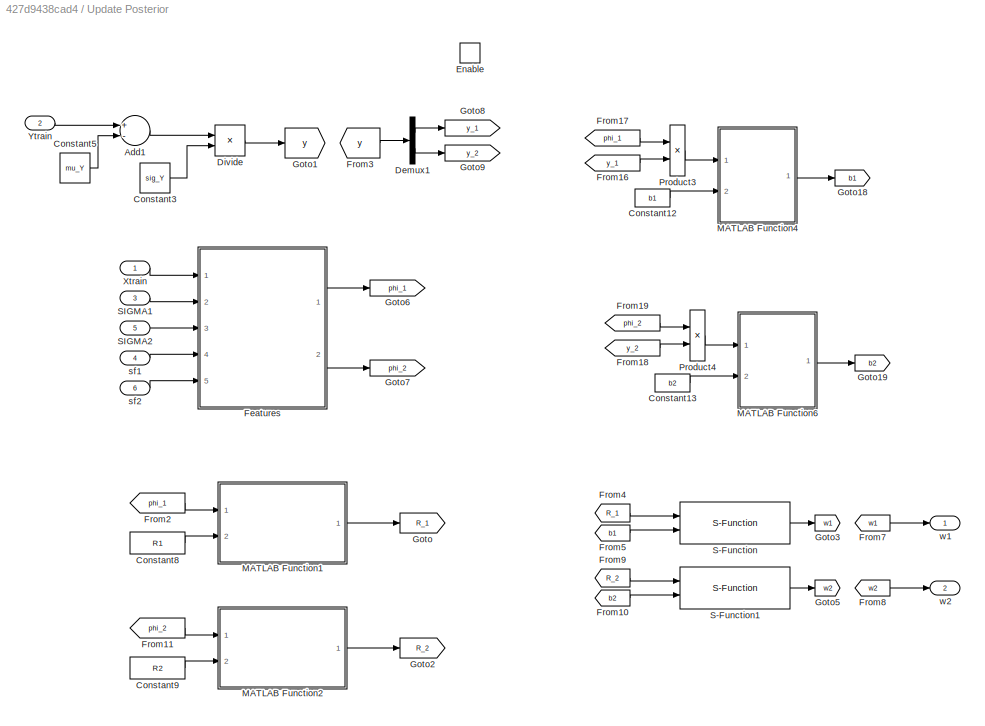
BLOCK [SubSystem] Update Posterior
  Ports = [6, 2, 1]
  RequestExecContextInheritance = off
BLOCK [Sum] Update Posterior/Add1
  InputSameDT = off
  Inputs = +-
  OutDataTypeStr = Inherit: Inherit via internal rule
  Ports = [2, 1]
  SaturateOnIntegerOverflow = off
BLOCK [Constant] Update Posterior/Constant12
  SampleTime = ts
  Value = b1
  VectorParams1D = off
BLOCK [Constant] Update Posterior/Constant13
  SampleTime = ts
  Value = b2
  VectorParams1D = off
BLOCK [Constant] Update Posterior/Constant3
  SampleTime = ts
  Value = sig_Y
  VectorParams1D = off
BLOCK [Constant] Update Posterior/Constant5
  SampleTime = ts
  Value = mu_Y
  VectorParams1D = off
BLOCK [Constant] Update Posterior/Constant8
  SampleTime = ts
  Value = R1
  VectorParams1D = off
BLOCK [Constant] Update Posterior/Constant9
  SampleTime = ts
  Value = R2
  VectorParams1D = off
BLOCK [Demux] Update Posterior/Demux1
  DisplayOption = bar
  Outputs = 2
  Ports = [1, 2]
BLOCK [Product] Update Posterior/Divide
  InputSameDT = off
  Inputs = */
  OutDataTypeStr = Inherit: Inherit via internal rule
  Ports = [2, 1]
  RndMeth = Floor
  SaturateOnIntegerOverflow = off
BLOCK [EnablePort] Update Posterior/Enable
  Ports = []
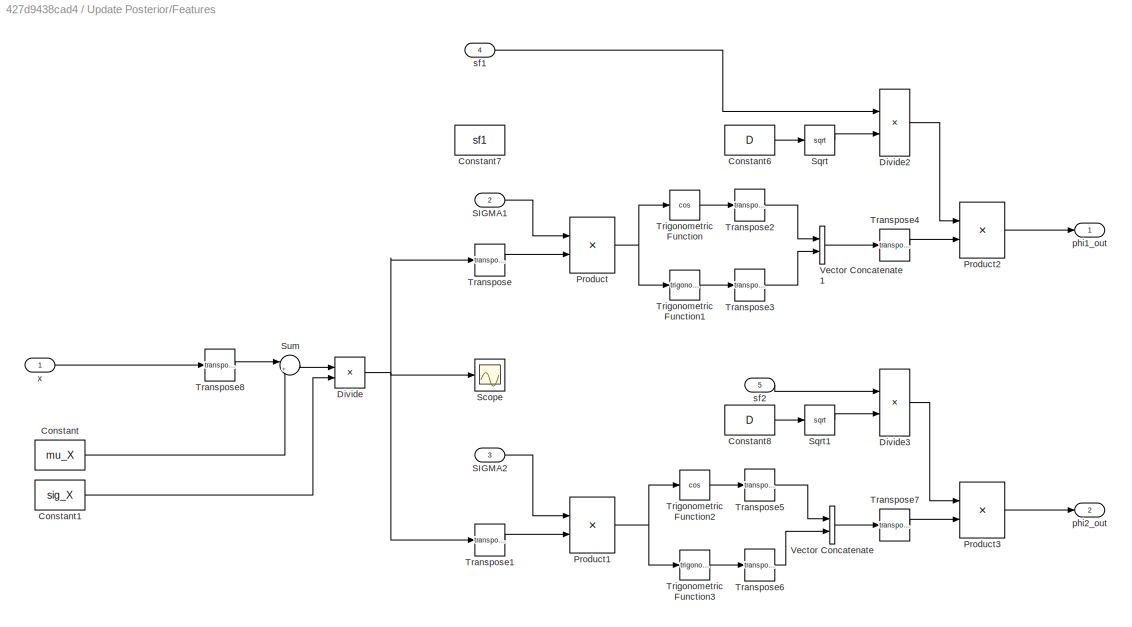
BLOCK [SubSystem] Update Posterior/Features
  Ports = [5, 2]
  RequestExecContextInheritance = off
BLOCK [Constant] Update Posterior/Features/Constant
  Value = mu_X
  VectorParams1D = off
BLOCK [Constant] Update Posterior/Features/Constant1
  Value = sig_X
  VectorParams1D = off
BLOCK [Constant] Update Posterior/Features/Constant6
  SampleTime = -1
  Value = D
BLOCK [Constant] Update Posterior/Features/Constant7
  Commented = on
  SampleTime = -1
  Value = sf1
BLOCK [Constant] Update Posterior/Features/Constant8
  SampleTime = -1
  Value = D
BLOCK [Product] Update Posterior/Features/Divide
  InputSameDT = off
  Inputs = */
  OutDataTypeStr = Inherit: Inherit via internal rule
  Ports = [2, 1]
  RndMeth = Floor
  SaturateOnIntegerOverflow = off
BLOCK [Product] Update Posterior/Features/Divide2
  InputSameDT = off
  Inputs = */
  OutDataTypeStr = Inherit: Inherit via internal rule
  Ports = [2, 1]
  RndMeth = Floor
  SaturateOnIntegerOverflow = off
BLOCK [Product] Update Posterior/Features/Divide3
  InputSameDT = off
  Inputs = */
  OutDataTypeStr = Inherit: Inherit via internal rule
  Ports = [2, 1]
  RndMeth = Floor
  SaturateOnIntegerOverflow = off
BLOCK [Product] Update Posterior/Features/Product
  InputSameDT = off
  Multiplication = Matrix(*)
  OutDataTypeStr = Inherit: Inherit via internal rule
  Ports = [2, 1]
  RndMeth = Floor
  SaturateOnIntegerOverflow = off
BLOCK [Product] Update Posterior/Features/Product1
  InputSameDT = off
  Multiplication = Matrix(*)
  OutDataTypeStr = Inherit: Inherit via internal rule
  Ports = [2, 1]
  RndMeth = Floor
  SaturateOnIntegerOverflow = off
BLOCK [Product] Update Posterior/Features/Product2
  InputSameDT = off
  OutDataTypeStr = Inherit: Inherit via internal rule
  Ports = [2, 1]
  RndMeth = Floor
  SaturateOnIntegerOverflow = off
BLOCK [Product] Update Posterior/Features/Product3
  InputSameDT = off
  OutDataTypeStr = Inherit: Inherit via internal rule
  Ports = [2, 1]
  RndMeth = Floor
  SaturateOnIntegerOverflow = off
BLOCK [Inport] Update Posterior/Features/SIGMA1
  IconDisplay = Port number
  Port = 2
BLOCK [Inport] Update Posterior/Features/SIGMA2
  IconDisplay = Port number
  Port = 3
BLOCK [Scope] Update Posterior/Features/Scope
  Floating = off
  NumInputPorts = 1
  Ports = [1]
  ScopeSpecificationString = Simulink.scopes.TimeScopeBlockCfg('CurrentConfiguration', extmgr.ConfigurationSet(extmgr.Configuration('Core','General UI',true),extmgr.Configuration('Core','Source UI',true),extmgr.Configuration('Sources','WiredSimulink',true,'DataLoggingVariableName','ScopeData3'),extmgr.Configuration('Visuals','Time Domain',true,'SerializedDisplays',{struct('MinYLimReal','-121.847','MaxYLimReal','121.51502','YL...<+1472ch>
BLOCK [Sqrt] Update Posterior/Features/Sqrt
BLOCK [Sqrt] Update Posterior/Features/Sqrt1
BLOCK [Sum] Update Posterior/Features/Sum
  IconShape = round
  InputSameDT = off
  Inputs = |+-
  OutDataTypeStr = Inherit: Inherit via internal rule
  Ports = [2, 1]
  SaturateOnIntegerOverflow = off
BLOCK [Math] Update Posterior/Features/Transpose
  Operator = transpose
  Ports = [1, 1]
BLOCK [Math] Update Posterior/Features/Transpose1
  Operator = transpose
  Ports = [1, 1]
BLOCK [Math] Update Posterior/Features/Transpose2
  Operator = transpose
  Ports = [1, 1]
BLOCK [Math] Update Posterior/Features/Transpose3
  Operator = transpose
  Ports = [1, 1]
BLOCK [Math] Update Posterior/Features/Transpose4
  Operator = transpose
  Ports = [1, 1]
BLOCK [Math] Update Posterior/Features/Transpose5
  Operator = transpose
  Ports = [1, 1]
BLOCK [Math] Update Posterior/Features/Transpose6
  Operator = transpose
  Ports = [1, 1]
BLOCK [Math] Update Posterior/Features/Transpose7
  Operator = transpose
  Ports = [1, 1]
BLOCK [Math] Update Posterior/Features/Transpose8
  Operator = transpose
  Ports = [1, 1]
BLOCK [Trigonometry] Update Posterior/Features/Trigonometric Function
  Operator = cos
  Ports = [1, 1]
BLOCK [Trigonometry] Update Posterior/Features/Trigonometric Function1
  Ports = [1, 1]
BLOCK [Trigonometry] Update Posterior/Features/Trigonometric Function2
  Operator = cos
  Ports = [1, 1]
BLOCK [Trigonometry] Update Posterior/Features/Trigonometric Function3
  Ports = [1, 1]
BLOCK [Concatenate] Update Posterior/Features/Vector Concatenate
  Ports = [2, 1]
BLOCK [Concatenate] Update Posterior/Features/Vector Concatenate1
  Ports = [2, 1]
BLOCK [Outport] Update Posterior/Features/phi1_out
  IconDisplay = Port number
BLOCK [Outport] Update Posterior/Features/phi2_out
  IconDisplay = Port number
  Port = 2
BLOCK [Inport] Update Posterior/Features/sf1
  IconDisplay = Port number
  Port = 4
BLOCK [Inport] Update Posterior/Features/sf2
  IconDisplay = Port number
  Port = 5
BLOCK [Inport] Update Posterior/Features/x
  IconDisplay = Port number
BLOCK [From] Update Posterior/From10
  GotoTag = b2
BLOCK [From] Update Posterior/From11
  GotoTag = phi_2
BLOCK [From] Update Posterior/From16
  GotoTag = y_1
BLOCK [From] Update Posterior/From17
  GotoTag = phi_1
BLOCK [From] Update Posterior/From18
  GotoTag = y_2
BLOCK [From] Update Posterior/From19
  GotoTag = phi_2
BLOCK [From] Update Posterior/From2
  GotoTag = phi_1
BLOCK [From] Update Posterior/From3
  GotoTag = y
BLOCK [From] Update Posterior/From4
  GotoTag = R_1
BLOCK [From] Update Posterior/From5
  GotoTag = b1
BLOCK [From] Update Posterior/From7
  GotoTag = w1
BLOCK [From] Update Posterior/From8
  GotoTag = w2
BLOCK [From] Update Posterior/From9
  GotoTag = R_2
BLOCK [Goto] Update Posterior/Goto
  GotoTag = R_1
BLOCK [Goto] Update Posterior/Goto1
  GotoTag = y
BLOCK [Goto] Update Posterior/Goto18
  GotoTag = b1
BLOCK [Goto] Update Posterior/Goto19
  GotoTag = b2
BLOCK [Goto] Update Posterior/Goto2
  GotoTag = R_2
BLOCK [Goto] Update Posterior/Goto3
  GotoTag = w1
BLOCK [Goto] Update Posterior/Goto5
  GotoTag = w2
BLOCK [Goto] Update Posterior/Goto6
  GotoTag = phi_1
BLOCK [Goto] Update Posterior/Goto7
  GotoTag = phi_2
BLOCK [Goto] Update Posterior/Goto8
  GotoTag = y_1
BLOCK [Goto] Update Posterior/Goto9
  GotoTag = y_2
BLOCK [SubSystem] Update Posterior/MATLAB Function1
  ErrorFcn = Stateflow.Translate.translate
  PermitHierarchicalResolution = ExplicitOnly
  Ports = [2, 1]
  RequestExecContextInheritance = off
  SFBlockType = MATLAB Function
  TreatAsAtomicUnit = on
BLOCK [Demux] Update Posterior/MATLAB Function1/ Demux 
  Outputs = 1
  Ports = [1, 1]
BLOCK [S-Function] Update Posterior/MATLAB Function1/ SFunction 
  EnableBusSupport = on
  FunctionName = sf_sfun
  PortCounts = [2 2]
  Ports = [2, 2]
  SFcnIsStateOwnerBlock = off
  SFunctionDeploymentMode = off
  Tag = Stateflow S-Function Coupled_GP_fit 6
BLOCK [Terminator] Update Posterior/MATLAB Function1/ Terminator 
BLOCK [Inport] Update Posterior/MATLAB Function1/R1
  IconDisplay = Port number
  Port = 2
BLOCK [Outport] Update Posterior/MATLAB Function1/R_out
  IconDisplay = Port number
BLOCK [Inport] Update Posterior/MATLAB Function1/phi
  IconDisplay = Port number
BLOCK [SubSystem] Update Posterior/MATLAB Function2
  ErrorFcn = Stateflow.Translate.translate
  PermitHierarchicalResolution = ExplicitOnly
  Ports = [2, 1]
  RequestExecContextInheritance = off
  SFBlockType = MATLAB Function
  TreatAsAtomicUnit = on
BLOCK [Demux] Update Posterior/MATLAB Function2/ Demux 
  Outputs = 1
  Ports = [1, 1]
BLOCK [S-Function] Update Posterior/MATLAB Function2/ SFunction 
  EnableBusSupport = on
  FunctionName = sf_sfun
  PortCounts = [2 2]
  Ports = [2, 2]
  SFcnIsStateOwnerBlock = off
  SFunctionDeploymentMode = off
  Tag = Stateflow S-Function Coupled_GP_fit 2
BLOCK [Terminator] Update Posterior/MATLAB Function2/ Terminator 
BLOCK [Inport] Update Posterior/MATLAB Function2/R1
  IconDisplay = Port number
  Port = 2
BLOCK [Outport] Update Posterior/MATLAB Function2/R_out
  IconDisplay = Port number
BLOCK [Inport] Update Posterior/MATLAB Function2/phi
  IconDisplay = Port number
BLOCK [SubSystem] Update Posterior/MATLAB Function4
  ErrorFcn = Stateflow.Translate.translate
  PermitHierarchicalResolution = ExplicitOnly
  Ports = [2, 1]
  RequestExecContextInheritance = off
  SFBlockType = MATLAB Function
  TreatAsAtomicUnit = on
BLOCK [Demux] Update Posterior/MATLAB Function4/ Demux 
  Outputs = 1
  Ports = [1, 1]
BLOCK [S-Function] Update Posterior/MATLAB Function4/ SFunction 
  EnableBusSupport = on
  FunctionName = sf_sfun
  PortCounts = [2 2]
  Ports = [2, 2]
  SFcnIsStateOwnerBlock = off
  SFunctionDeploymentMode = off
  Tag = Stateflow S-Function Coupled_GP_fit 8
BLOCK [Terminator] Update Posterior/MATLAB Function4/ Terminator 
BLOCK [Inport] Update Posterior/MATLAB Function4/b_init
  IconDisplay = Port number
  Port = 2
BLOCK [Outport] Update Posterior/MATLAB Function4/b_out
  IconDisplay = Port number
BLOCK [Inport] Update Posterior/MATLAB Function4/update
  IconDisplay = Port number
BLOCK [SubSystem] Update Posterior/MATLAB Function6
  ErrorFcn = Stateflow.Translate.translate
  PermitHierarchicalResolution = ExplicitOnly
  Ports = [2, 1]
  RequestExecContextInheritance = off
  SFBlockType = MATLAB Function
  TreatAsAtomicUnit = on
BLOCK [Demux] Update Posterior/MATLAB Function6/ Demux 
  Outputs = 1
  Ports = [1, 1]
BLOCK [S-Function] Update Posterior/MATLAB Function6/ SFunction 
  EnableBusSupport = on
  FunctionName = sf_sfun
  PortCounts = [2 2]
  Ports = [2, 2]
  SFcnIsStateOwnerBlock = off
  SFunctionDeploymentMode = off
  Tag = Stateflow S-Function Coupled_GP_fit 9
BLOCK [Terminator] Update Posterior/MATLAB Function6/ Terminator 
BLOCK [Inport] Update Posterior/MATLAB Function6/b_init
  IconDisplay = Port number
  Port = 2
BLOCK [Outport] Update Posterior/MATLAB Function6/b_out
  IconDisplay = Port number
BLOCK [Inport] Update Posterior/MATLAB Function6/update
  IconDisplay = Port number
BLOCK [Product] Update Posterior/Product3
  InputSameDT = off
  OutDataTypeStr = Inherit: Inherit via internal rule
  Ports = [2, 1]
  RndMeth = Floor
  SaturateOnIntegerOverflow = off
BLOCK [Product] Update Posterior/Product4
  InputSameDT = off
  OutDataTypeStr = Inherit: Inherit via internal rule
  Ports = [2, 1]
  RndMeth = Floor
  SaturateOnIntegerOverflow = off
BLOCK [S-Function] Update Posterior/S-Function
  EnableBusSupport = off
  FunctionName = solve_chol_sfun
  Parameters = 2*D
  Ports = [2, 1]
  SFcnIsStateOwnerBlock = off
  SFunctionDeploymentMode = off
BLOCK [S-Function] Update Posterior/S-Function1
  EnableBusSupport = off
  FunctionName = solve_chol_sfun
  Parameters = 2*D
  Ports = [2, 1]
  SFcnIsStateOwnerBlock = off
  SFunctionDeploymentMode = off
BLOCK [Inport] Update Posterior/SIGMA1
  IconDisplay = Port number
  Port = 3
  SampleTime = ts
BLOCK [Inport] Update Posterior/SIGMA2
  IconDisplay = Port number
  Port = 5
  SampleTime = ts
BLOCK [Inport] Update Posterior/Xtrain
  IconDisplay = Port number
  SampleTime = ts
BLOCK [Inport] Update Posterior/Ytrain
  IconDisplay = Port number
  Port = 2
  SampleTime = ts
BLOCK [Inport] Update Posterior/sf1
  IconDisplay = Port number
  Port = 4
  SampleTime = ts
BLOCK [Inport] Update Posterior/sf2
  IconDisplay = Port number
  Port = 6
  SampleTime = ts
BLOCK [Outport] Update Posterior/w1
  IconDisplay = Port number
BLOCK [Outport] Update Posterior/w2
  IconDisplay = Port number
  Port = 2
BLOCK [Scope] error
  Floating = off
  NumInputPorts = 2
  Ports = [2]
  ScopeSpecificationString = Simulink.scopes.TimeScopeBlockCfg('CurrentConfiguration', extmgr.ConfigurationSet(extmgr.Configuration('Core','General UI',true),extmgr.Configuration('Core','Source UI',true),extmgr.Configuration('Sources','WiredSimulink',true,'DataLoggingVariableName','ScopeData2','DataLoggingSaveFormat','StructureWithTime'),extmgr.Configuration('Visuals','Time Domain',true,'SerializedDisplays',{struct('MinYLimRe...<+2086ch>
BLOCK [Scope] plant output
  Floating = off
  NumInputPorts = 3
  Ports = [3]
  ScopeSpecificationString = Simulink.scopes.TimeScopeBlockCfg('CurrentConfiguration', extmgr.ConfigurationSet(extmgr.Configuration('Core','General UI',true),extmgr.Configuration('Core','Source UI',true),extmgr.Configuration('Sources','WiredSimulink',true,'DataLoggingVariableName','ScopeData2'),extmgr.Configuration('Visuals','Time Domain',true,'SerializedDisplays',{struct('MinYLimReal','-1.06794','MaxYLimReal','1.0687','YLabe...<+2810ch>
ANNOTATION (root): Level 2 Inference
ANNOTATION (root): Scopes & Logging
ANNOTATION (root): Setpoint Generator
LINE 2 link pendulum/Band-Limited White Noise1:1 -> 2 link pendulum/Rate Transition1:1
LINE 2 link pendulum/Band-Limited White Noise2:1 -> 2 link pendulum/Gain:1
LINE 2 link pendulum/Band-Limited White Noise3:1 -> 2 link pendulum/Gain1:1
LINE 2 link pendulum/Band-Limited White Noise4:1 -> 2 link pendulum/Rate Transition:1
LINE 2 link pendulum/Demux:1 -> 2 link pendulum/Sum:1
LINE 2 link pendulum/Demux:2 -> 2 link pendulum/Sum1:1
LINE 2 link pendulum/Gain1:1 -> 2 link pendulum/Sum3:2
LINE 2 link pendulum/Gain2:1 -> 2 link pendulum/Sum1:2
NET 2 link pendulum/Gain3:1 -> 2 link pendulum/Sum:2, 2 link pendulum/To Workspace1:1
NET 2 link pendulum/Gain:1 -> 2 link pendulum/Sum2:2, 2 link pendulum/To Workspace:1
LINE 2 link pendulum/PS-Simulink Converter1:1 -> 2 link pendulum/Sum3:1
LINE 2 link pendulum/PS-Simulink Converter:1 -> 2 link pendulum/Sum2:1
LINE 2 link pendulum/Rate Transition1:1 -> 2 link pendulum/Gain2:1
LINE 2 link pendulum/Rate Transition:1 -> 2 link pendulum/Gain3:1
LINE 2 link pendulum/Sum1:1 -> 2 link pendulum/Simulink-PS Converter1:1
LINE 2 link pendulum/Sum2:1 -> 2 link pendulum/q_1:1
LINE 2 link pendulum/Sum3:1 -> 2 link pendulum/q_2:1
LINE 2 link pendulum/Sum:1 -> 2 link pendulum/Simulink-PS Converter:1
LINE 2 link pendulum/T:1 -> 2 link pendulum/Demux:1
LINE 2 link pendulum:1 -> Mux3:1
LINE 2 link pendulum:2 -> Mux3:2
LINE Bus Selector1:1 -> Rigid body dynamics:2
LINE Bus Selector2:1 -> Mux4:2
LINE Bus Selector3:1 -> Sum2:1
LINE Bus Selector4:1 -> Setpoint:1
LINE Bus Selector4:2 -> Setpoint:2
LINE Bus Selector4:3 -> Setpoint:3
LINE Bus Selector5:1 -> Mux4:1
LINE Bus Selector:1 -> plant output:1
LINE Bus Selector:2 -> plant output:2
LINE Bus Selector:3 -> plant output:3
LINE Constant13:1 -> Update Posterior:5
LINE Constant17:1 -> Update Posterior:4
LINE Constant18:1 -> Update Posterior:6
LINE Constant2:1 -> Gaussian process regression:4
LINE Constant3:1 -> Gaussian process regression:6
LINE Constant4:1 -> Gaussian process regression:5
LINE Constant5:1 -> Gaussian process regression:7
LINE Constant6:1 -> Update Posterior:3
LINE Controller/Demux1:1 -> Controller/PID 1:1
LINE Controller/Demux1:2 -> Controller/PID 2:1
LINE Controller/Demux:1 -> Controller/PID Controller:1
LINE Controller/Demux:2 -> Controller/PID Controller1:1
NET Controller/Error:1 -> Controller/Demux1:1, Controller/Demux:1
LINE Controller/From:1 -> Controller/P_fb:1
LINE Controller/Mux1:1 -> Controller/Goto:1
LINE Controller/Mux:1 -> Controller/Goto1:1
LINE Controller/PID 1/Discrete-Time Integrator1:1 -> Controller/PID 1/Sum1:3
NET Controller/PID 1/Discrete-Time Integrator:1 -> Controller/PID 1/Sum:2, Controller/PID 1/ki:1, Controller/PID 1/kp:1
NET Controller/PID 1/Gain:1 -> Controller/PID 1/Discrete-Time Integrator:1, Controller/PID 1/kd:1
LINE Controller/PID 1/In1:1 -> Controller/PID 1/Sum:1
LINE Controller/PID 1/Sum1:1 -> Controller/PID 1/Out1:1
LINE Controller/PID 1/Sum:1 -> Controller/PID 1/Gain:1
LINE Controller/PID 1/kd:1 -> Controller/PID 1/Sum1:1
LINE Controller/PID 1/ki:1 -> Controller/PID 1/Discrete-Time Integrator1:1
LINE Controller/PID 1/kp:1 -> Controller/PID 1/Sum1:2
LINE Controller/PID 1:1 -> Controller/Mux1:1
LINE Controller/PID 2/Discrete-Time Integrator1:1 -> Controller/PID 2/Sum1:3
NET Controller/PID 2/Discrete-Time Integrator:1 -> Controller/PID 2/Sum:2, Controller/PID 2/ki:1, Controller/PID 2/kp:1
NET Controller/PID 2/Gain:1 -> Controller/PID 2/Discrete-Time Integrator:1, Controller/PID 2/kd:1
LINE Controller/PID 2/In1:1 -> Controller/PID 2/Sum:1
LINE Controller/PID 2/Sum1:1 -> Controller/PID 2/Out1:1
LINE Controller/PID 2/Sum:1 -> Controller/PID 2/Gain:1
LINE Controller/PID 2/kd:1 -> Controller/PID 2/Sum1:1
LINE Controller/PID 2/ki:1 -> Controller/PID 2/Discrete-Time Integrator1:1
LINE Controller/PID 2/kp:1 -> Controller/PID 2/Sum1:2
LINE Controller/PID 2:1 -> Controller/Mux1:2
LINE Controller/PID Controller1:1 -> Controller/Mux:2
LINE Controller/PID Controller:1 -> Controller/Mux:1
NET Controller:1 -> Goto2:1, Sum1:2
LINE Delay1:1 -> IC1:1
LINE Delay3:1 -> IC:1
LINE Delay:1 -> Sum2:2
LINE Demux1:1 -> Control output:1
LINE Demux1:2 -> Control output:2
LINE Demux2:1 -> State Variable filter2:1
LINE Demux2:2 -> State Variable filter1:1
LINE Demux3:1 -> I-SSGP:1
LINE Demux3:2 -> I-SSGP:2
LINE Demux:1 -> error:1
LINE Demux:2 -> error:2
LINE From10:1 -> To Workspace2:1
LINE From11:1 -> To Workspace5:1
LINE From12:1 -> To Workspace6:1
LINE From13:1 -> To Workspace7:1
LINE From14:1 -> Bus Selector4:1
LINE From15:1 -> Demux3:1
LINE From16:1 -> Rigid body dynamics:1
LINE From1:1 -> Gaussian process regression:2
LINE From25:1 -> Update Posterior:1
LINE From27:1 -> Update Posterior:2
LINE From2:1 -> Demux:1
LINE From3:1 -> Bus Selector:1
NET From4:1 -> Bus Selector1:1, Bus Selector3:1, Goto1:1
LINE From5:1 -> Gaussian process regression:3
LINE From6:1 -> To Workspace4:1
LINE From7:1 -> Gain:1
LINE From8:1 -> Demux1:1
LINE From9:1 -> Gain1:1
LINE From:1 -> Gaussian process regression:1
LINE Gain1:1 -> To Workspace1:1
LINE Gain:1 -> To Workspace3:1
LINE Gaussian process regression/Add:1 -> Gaussian process regression/Demux:1
LINE Gaussian process regression/Constant1:1 -> Gaussian process regression/Add:2
LINE Gaussian process regression/Constant:1 -> Gaussian process regression/Product:2
LINE Gaussian process regression/Demux:1 -> Gaussian process regression/Gain2:1
LINE Gaussian process regression/Demux:2 -> Gaussian process regression/Gain3:1
LINE Gaussian process regression/Dot Product1:1 -> Gaussian process regression/Mux:2
LINE Gaussian process regression/Dot Product:1 -> Gaussian process regression/Mux:1
LINE Gaussian process regression/From5:1 -> Gaussian process regression/Dot Product:2
LINE Gaussian process regression/From:1 -> Gaussian process regression/Dot Product1:2
LINE Gaussian process regression/Gain2:1 -> Gaussian process regression/Product1:2
LINE Gaussian process regression/Gain3:1 -> Gaussian process regression/Product2:2
LINE Gaussian process regression/Mux:1 -> Gaussian process regression/Product:1
LINE Gaussian process regression/Product1:1 -> Gaussian process regression/FF_gp1:1
LINE Gaussian process regression/Product2:1 -> Gaussian process regression/FF_gp2:1
LINE Gaussian process regression/Product:1 -> Gaussian process regression/Add:1
LINE Gaussian process regression/SIGMA1:1 -> Gaussian process regression/Subsystem:2
LINE Gaussian process regression/SIGMA2:1 -> Gaussian process regression/Subsystem:3
LINE Gaussian process regression/Step:1 -> Gaussian process regression/Subsystem1:1
LINE Gaussian process regression/Subsystem/Constant1:1 -> Gaussian process regression/Subsystem/Divide:2
LINE Gaussian process regression/Subsystem/Constant6:1 -> Gaussian process regression/Subsystem/Sqrt:1
LINE Gaussian process regression/Subsystem/Constant8:1 -> Gaussian process regression/Subsystem/Sqrt1:1
LINE Gaussian process regression/Subsystem/Constant:1 -> Gaussian process regression/Subsystem/Sum:2
LINE Gaussian process regression/Subsystem/Divide2:1 -> Gaussian process regression/Subsystem/Product2:1
LINE Gaussian process regression/Subsystem/Divide3:1 -> Gaussian process regression/Subsystem/Product3:1
LINE Gaussian process regression/Subsystem/Divide:1 -> Gaussian process regression/Subsystem/Transpose1:1
NET Gaussian process regression/Subsystem/Product1:1 -> Gaussian process regression/Subsystem/Trigonometric Function2:1, Gaussian process regression/Subsystem/Trigonometric Function3:1
LINE Gaussian process regression/Subsystem/Product2:1 -> Gaussian process regression/Subsystem/phi_1:1
LINE Gaussian process regression/Subsystem/Product3:1 -> Gaussian process regression/Subsystem/phi_2:1
NET Gaussian process regression/Subsystem/Product:1 -> Gaussian process regression/Subsystem/Trigonometric Function1:1, Gaussian process regression/Subsystem/Trigonometric Function:1
LINE Gaussian process regression/Subsystem/SIGMA1:1 -> Gaussian process regression/Subsystem/Product:1
LINE Gaussian process regression/Subsystem/SIGMA2:1 -> Gaussian process regression/Subsystem/Product1:1
LINE Gaussian process regression/Subsystem/Sqrt1:1 -> Gaussian process regression/Subsystem/Divide3:2
LINE Gaussian process regression/Subsystem/Sqrt:1 -> Gaussian process regression/Subsystem/Divide2:2
LINE Gaussian process regression/Subsystem/Sum:1 -> Gaussian process regression/Subsystem/Divide:1
NET Gaussian process regression/Subsystem/Transpose1:1 -> Gaussian process regression/Subsystem/Product1:2, Gaussian process regression/Subsystem/Product:2
LINE Gaussian process regression/Subsystem/Transpose2:1 -> Gaussian process regression/Subsystem/Vector Concatenate1:1
LINE Gaussian process regression/Subsystem/Transpose3:1 -> Gaussian process regression/Subsystem/Vector Concatenate1:2
LINE Gaussian process regression/Subsystem/Transpose4:1 -> Gaussian process regression/Subsystem/Product2:2
LINE Gaussian process regression/Subsystem/Transpose5:1 -> Gaussian process regression/Subsystem/Vector Concatenate:1
LINE Gaussian process regression/Subsystem/Transpose6:1 -> Gaussian process regression/Subsystem/Vector Concatenate:2
LINE Gaussian process regression/Subsystem/Transpose7:1 -> Gaussian process regression/Subsystem/Product3:2
LINE Gaussian process regression/Subsystem/Transpose:1 -> Gaussian process regression/Subsystem/Sum:1
LINE Gaussian process regression/Subsystem/Trigonometric Function1:1 -> Gaussian process regression/Subsystem/Transpose3:1
LINE Gaussian process regression/Subsystem/Trigonometric Function2:1 -> Gaussian process regression/Subsystem/Transpose5:1
LINE Gaussian process regression/Subsystem/Trigonometric Function3:1 -> Gaussian process regression/Subsystem/Transpose6:1
LINE Gaussian process regression/Subsystem/Trigonometric Function:1 -> Gaussian process regression/Subsystem/Transpose2:1
LINE Gaussian process regression/Subsystem/Vector Concatenate1:1 -> Gaussian process regression/Subsystem/Transpose4:1
LINE Gaussian process regression/Subsystem/Vector Concatenate:1 -> Gaussian process regression/Subsystem/Transpose7:1
LINE Gaussian process regression/Subsystem/sf1:1 -> Gaussian process regression/Subsystem/Divide2:1
LINE Gaussian process regression/Subsystem/sf2:1 -> Gaussian process regression/Subsystem/Divide3:1
LINE Gaussian process regression/Subsystem/y:1 -> Gaussian process regression/Subsystem/Transpose:1
LINE Gaussian process regression/Subsystem1/Constant2:1 -> Gaussian process regression/Subsystem1/Sum:2
LINE Gaussian process regression/Subsystem1/Constant:1 -> Gaussian process regression/Subsystem1/Sum3:2
LINE Gaussian process regression/Subsystem1/Discrete-Time Integrator3:1 -> Gaussian process regression/Subsystem1/Sum1:2
LINE Gaussian process regression/Subsystem1/Divide:1 -> Gaussian process regression/Subsystem1/Sum2:2
LINE Gaussian process regression/Subsystem1/Exp:1 -> Gaussian process regression/Subsystem1/Sum:1
LINE Gaussian process regression/Subsystem1/Gain1:1 -> Gaussian process regression/Subsystem1/Sum2:1
LINE Gaussian process regression/Subsystem1/Gain:1 -> Gaussian process regression/Subsystem1/Exp:1
LINE Gaussian process regression/Subsystem1/Multiply:1 -> Gaussian process regression/Subsystem1/Saturation:1
LINE Gaussian process regression/Subsystem1/Saturation:1 -> Gaussian process regression/Subsystem1/Activation Signal:1
LINE Gaussian process regression/Subsystem1/Sum1:1 -> Gaussian process regression/Subsystem1/Gain:1
LINE Gaussian process regression/Subsystem1/Sum2:1 -> Gaussian process regression/Subsystem1/Multiply:1
LINE Gaussian process regression/Subsystem1/Sum3:1 -> Gaussian process regression/Subsystem1/Divide:1
LINE Gaussian process regression/Subsystem1/Sum:1 -> Gaussian process regression/Subsystem1/Divide:2
NET Gaussian process regression/Subsystem1/Switch:1 -> Gaussian process regression/Subsystem1/Discrete-Time Integrator3:2, Gaussian process regression/Subsystem1/Multiply:2
NET Gaussian process regression/Subsystem1/additional amplitude:1 -> Gaussian process regression/Subsystem1/Gain1:1, Gaussian process regression/Subsystem1/Sum3:1
LINE Gaussian process regression/Subsystem1/horizontal offset:1 -> Gaussian process regression/Subsystem1/Sum1:1
LINE Gaussian process regression/Subsystem1/slope:1 -> Gaussian process regression/Subsystem1/Discrete-Time Integrator3:1
NET Gaussian process regression/Subsystem1:1 -> Gaussian process regression/Product1:1, Gaussian process regression/Product2:1
LINE Gaussian process regression/Subsystem:1 -> Gaussian process regression/Goto6:1
LINE Gaussian process regression/Subsystem:2 -> Gaussian process regression/Goto1:1
LINE Gaussian process regression/r:1 -> Gaussian process regression/Subsystem:1
LINE Gaussian process regression/sf1:1 -> Gaussian process regression/Subsystem:4
LINE Gaussian process regression/sf2:1 -> Gaussian process regression/Subsystem:5
LINE Gaussian process regression/w1:1 -> Gaussian process regression/Dot Product:1
LINE Gaussian process regression/w2:1 -> Gaussian process regression/Dot Product1:1
LINE Gaussian process regression:1 -> Mux1:1
LINE Gaussian process regression:2 -> Mux1:2
LINE IC1:1 -> Goto w2:1
LINE IC:1 -> Goto w1:1
LINE Manual Switch:1 -> Setpoint Generator:1
NET Mux1:1 -> Goto8:1, Sum3:2
LINE Mux2:1 -> Sum4:2
NET Mux3:1 -> Delay:1, State Variable filter:1
LINE Mux4:1 -> Sum4:1
NET Mux:1 -> Goto7:1, Sum3:1
LINE Pulse Generator2:1 -> Sum5:1
LINE Pulse Generator:1 -> Manual Switch:2
NET Rigid body dynamics - 2/Bus Selector1:1 -> Rigid body dynamics - 2/MATLAB Function:2, Rigid body dynamics - 2/MATLAB Function:4
NET Rigid body dynamics - 2/Bus Selector2:1 -> Rigid body dynamics - 2/MATLAB Function:3, Rigid body dynamics - 2/MATLAB Function:5
LINE Rigid body dynamics - 2/Bus Selector:1 -> Rigid body dynamics - 2/MATLAB Function:1
LINE Rigid body dynamics - 2/MATLAB Function:1 -> Rigid body dynamics - 2/Sign - 1:1
LINE Rigid body dynamics - 2/MATLAB Function:2 -> Rigid body dynamics - 2/Sign - 2:1
LINE Rigid body dynamics - 2/Sign - 1:1 -> Rigid body dynamics - 2/T_rbd1_est:1
LINE Rigid body dynamics - 2/Sign - 2:1 -> Rigid body dynamics - 2/T_rbd2_est:1
NET Rigid body dynamics - 2/q:1 -> Rigid body dynamics - 2/Bus Selector1:1, Rigid body dynamics - 2/Bus Selector2:1, Rigid body dynamics - 2/Bus Selector:1
LINE Rigid body dynamics - 2:1 -> Mux2:1
LINE Rigid body dynamics - 2:2 -> Mux2:2
NET Rigid body dynamics/Bus Selector1:1 -> Rigid body dynamics/MATLAB Function:2, Rigid body dynamics/MATLAB Function:4
LINE Rigid body dynamics/Bus Selector2:1 -> Rigid body dynamics/MATLAB Function:3
LINE Rigid body dynamics/Bus Selector:1 -> Rigid body dynamics/MATLAB Function:1
LINE Rigid body dynamics/MATLAB Function:1 -> Rigid body dynamics/Sign - 1:1
LINE Rigid body dynamics/MATLAB Function:2 -> Rigid body dynamics/Sign - 2:1
LINE Rigid body dynamics/Sign - 1:1 -> Rigid body dynamics/FF_rbd_1:1
LINE Rigid body dynamics/Sign - 2:1 -> Rigid body dynamics/FF_rbd_2:1
NET Rigid body dynamics/q:1 -> Rigid body dynamics/Bus Selector1:1, Rigid body dynamics/Bus Selector2:1, Rigid body dynamics/Bus Selector:1
LINE Rigid body dynamics/r:1 -> Rigid body dynamics/MATLAB Function:5
LINE Rigid body dynamics:1 -> Mux:1
LINE Rigid body dynamics:2 -> Mux:2
LINE Setpoint Generator/Bus Creator1:1 -> Setpoint Generator/Bus Creator:1
LINE Setpoint Generator/Bus Creator2:1 -> Setpoint Generator/Bus Creator:2
LINE Setpoint Generator/Bus Creator3:1 -> Setpoint Generator/Bus Creator:3
LINE Setpoint Generator/Bus Creator:1 -> Setpoint Generator/reference:1
LINE Setpoint Generator/Gain1:1 -> Setpoint Generator/TDfhan1:1
NET Setpoint Generator/Setpoint:1 -> Setpoint Generator/Gain1:1, Setpoint Generator/TDfhan:1
LINE Setpoint Generator/TDfhan/Constant1:1 -> Setpoint Generator/TDfhan/MATLAB Function2:4
LINE Setpoint Generator/TDfhan/Constant:1 -> Setpoint Generator/TDfhan/MATLAB Function2:3
NET Setpoint Generator/TDfhan/Discrete-Time Integrator1:1 -> Setpoint Generator/TDfhan/Scope:1, Setpoint Generator/TDfhan/Sum:1, Setpoint Generator/TDfhan/V1:1
NET Setpoint Generator/TDfhan/Discrete-Time Integrator:1 -> Setpoint Generator/TDfhan/Discrete-Time Integrator1:1, Setpoint Generator/TDfhan/MATLAB Function2:2, Setpoint Generator/TDfhan/Scope:2, Setpoint Generator/TDfhan/V2:1
NET Setpoint Generator/TDfhan/MATLAB Function2:1 -> Setpoint Generator/TDfhan/Discrete-Time Integrator:1, Setpoint Generator/TDfhan/Scope:3, Setpoint Generator/TDfhan/V3:1
LINE Setpoint Generator/TDfhan/Sum:1 -> Setpoint Generator/TDfhan/MATLAB Function2:1
LINE Setpoint Generator/TDfhan/V:1 -> Setpoint Generator/TDfhan/Sum:2
LINE Setpoint Generator/TDfhan1/Constant1:1 -> Setpoint Generator/TDfhan1/MATLAB Function2:4
LINE Setpoint Generator/TDfhan1/Constant:1 -> Setpoint Generator/TDfhan1/MATLAB Function2:3
NET Setpoint Generator/TDfhan1/Discrete-Time Integrator1:1 -> Setpoint Generator/TDfhan1/Scope:1, Setpoint Generator/TDfhan1/Sum:1, Setpoint Generator/TDfhan1/V1:1
NET Setpoint Generator/TDfhan1/Discrete-Time Integrator:1 -> Setpoint Generator/TDfhan1/Discrete-Time Integrator1:1, Setpoint Generator/TDfhan1/MATLAB Function2:2, Setpoint Generator/TDfhan1/Scope:2, Setpoint Generator/TDfhan1/V2:1
NET Setpoint Generator/TDfhan1/MATLAB Function2:1 -> Setpoint Generator/TDfhan1/Discrete-Time Integrator:1, Setpoint Generator/TDfhan1/Scope:3, Setpoint Generator/TDfhan1/V3:1
LINE Setpoint Generator/TDfhan1/Sum:1 -> Setpoint Generator/TDfhan1/MATLAB Function2:1
LINE Setpoint Generator/TDfhan1/V:1 -> Setpoint Generator/TDfhan1/Sum:2
LINE Setpoint Generator/TDfhan1:1 -> Setpoint Generator/Bus Creator1:2
LINE Setpoint Generator/TDfhan1:2 -> Setpoint Generator/Bus Creator2:2
LINE Setpoint Generator/TDfhan1:3 -> Setpoint Generator/Bus Creator3:2
LINE Setpoint Generator/TDfhan:1 -> Setpoint Generator/Bus Creator1:1
LINE Setpoint Generator/TDfhan:2 -> Setpoint Generator/Bus Creator2:1
LINE Setpoint Generator/TDfhan:3 -> Setpoint Generator/Bus Creator3:1
LINE Setpoint Generator:1 -> Goto:1
LINE Skewsine Setpoint Generator/Bus Creator1:1 -> Skewsine Setpoint Generator/Bus Creator:1
LINE Skewsine Setpoint Generator/Bus Creator2:1 -> Skewsine Setpoint Generator/Bus Creator:2
LINE Skewsine Setpoint Generator/Bus Creator3:1 -> Skewsine Setpoint Generator/Bus Creator:3
LINE Skewsine Setpoint Generator/Bus Creator:1 -> Skewsine Setpoint Generator/ref:1
LINE Skewsine Setpoint Generator/Gain2:1 -> Skewsine Setpoint Generator/Subsystem1:1
NET Skewsine Setpoint Generator/Setpoint:1 -> Skewsine Setpoint Generator/Gain2:1, Skewsine Setpoint Generator/Subsystem:1
LINE Skewsine Setpoint Generator/Subsystem/Clock:1 -> Skewsine Setpoint Generator/Subsystem/Sum6:3
LINE Skewsine Setpoint Generator/Subsystem/Constant1:1 -> Skewsine Setpoint Generator/Subsystem/Sum6:1
LINE Skewsine Setpoint Generator/Subsystem/Constant2:1 -> Skewsine Setpoint Generator/Subsystem/MATLAB Function:2
LINE Skewsine Setpoint Generator/Subsystem/Constant:1 -> Skewsine Setpoint Generator/Subsystem/Sum5:2
NET Skewsine Setpoint Generator/Subsystem/Delay1:1 -> Skewsine Setpoint Generator/Subsystem/Scope:1, Skewsine Setpoint Generator/Subsystem/Sum2:1
LINE Skewsine Setpoint Generator/Subsystem/Delay4:1 -> Skewsine Setpoint Generator/Subsystem/Sum5:1
LINE Skewsine Setpoint Generator/Subsystem/Delay:1 -> Skewsine Setpoint Generator/Subsystem/Sum:1
LINE Skewsine Setpoint Generator/Subsystem/Gain:1 -> Skewsine Setpoint Generator/Subsystem/Sum6:2
LINE Skewsine Setpoint Generator/Subsystem/MATLAB Function:1 -> Skewsine Setpoint Generator/Subsystem/Sum2:2
LINE Skewsine Setpoint Generator/Subsystem/MATLAB Function:2 -> Skewsine Setpoint Generator/Subsystem/r_dot:1
LINE Skewsine Setpoint Generator/Subsystem/MATLAB Function:3 -> Skewsine Setpoint Generator/Subsystem/r_ddot:1
LINE Skewsine Setpoint Generator/Subsystem/Sum2:1 -> Skewsine Setpoint Generator/Subsystem/r:1
NET Skewsine Setpoint Generator/Subsystem/Sum5:1 -> Skewsine Setpoint Generator/Subsystem/Delay4:1, Skewsine Setpoint Generator/Subsystem/Gain:1
LINE Skewsine Setpoint Generator/Subsystem/Sum6:1 -> Skewsine Setpoint Generator/Subsystem/MATLAB Function:3
LINE Skewsine Setpoint Generator/Subsystem/Sum:1 -> Skewsine Setpoint Generator/Subsystem/MATLAB Function:1
NET Skewsine Setpoint Generator/Subsystem/setpoint:1 -> Skewsine Setpoint Generator/Subsystem/Delay1:1, Skewsine Setpoint Generator/Subsystem/Delay:1, Skewsine Setpoint Generator/Subsystem/Sum:2
LINE Skewsine Setpoint Generator/Subsystem1/Clock:1 -> Skewsine Setpoint Generator/Subsystem1/Sum6:3
LINE Skewsine Setpoint Generator/Subsystem1/Constant1:1 -> Skewsine Setpoint Generator/Subsystem1/Sum6:1
LINE Skewsine Setpoint Generator/Subsystem1/Constant2:1 -> Skewsine Setpoint Generator/Subsystem1/MATLAB Function:2
LINE Skewsine Setpoint Generator/Subsystem1/Constant:1 -> Skewsine Setpoint Generator/Subsystem1/Sum5:2
NET Skewsine Setpoint Generator/Subsystem1/Delay1:1 -> Skewsine Setpoint Generator/Subsystem1/Scope:1, Skewsine Setpoint Generator/Subsystem1/Sum2:1
LINE Skewsine Setpoint Generator/Subsystem1/Delay4:1 -> Skewsine Setpoint Generator/Subsystem1/Sum5:1
LINE Skewsine Setpoint Generator/Subsystem1/Delay:1 -> Skewsine Setpoint Generator/Subsystem1/Sum:1
LINE Skewsine Setpoint Generator/Subsystem1/Gain:1 -> Skewsine Setpoint Generator/Subsystem1/Sum6:2
LINE Skewsine Setpoint Generator/Subsystem1/MATLAB Function:1 -> Skewsine Setpoint Generator/Subsystem1/Sum2:2
LINE Skewsine Setpoint Generator/Subsystem1/MATLAB Function:2 -> Skewsine Setpoint Generator/Subsystem1/r_dot:1
LINE Skewsine Setpoint Generator/Subsystem1/MATLAB Function:3 -> Skewsine Setpoint Generator/Subsystem1/r_ddot:1
LINE Skewsine Setpoint Generator/Subsystem1/Sum2:1 -> Skewsine Setpoint Generator/Subsystem1/r:1
NET Skewsine Setpoint Generator/Subsystem1/Sum5:1 -> Skewsine Setpoint Generator/Subsystem1/Delay4:1, Skewsine Setpoint Generator/Subsystem1/Gain:1
LINE Skewsine Setpoint Generator/Subsystem1/Sum6:1 -> Skewsine Setpoint Generator/Subsystem1/MATLAB Function:3
LINE Skewsine Setpoint Generator/Subsystem1/Sum:1 -> Skewsine Setpoint Generator/Subsystem1/MATLAB Function:1
NET Skewsine Setpoint Generator/Subsystem1/setpoint:1 -> Skewsine Setpoint Generator/Subsystem1/Delay1:1, Skewsine Setpoint Generator/Subsystem1/Delay:1, Skewsine Setpoint Generator/Subsystem1/Sum:2
LINE Skewsine Setpoint Generator/Subsystem1:1 -> Skewsine Setpoint Generator/Bus Creator1:2
LINE Skewsine Setpoint Generator/Subsystem1:2 -> Skewsine Setpoint Generator/Bus Creator2:2
LINE Skewsine Setpoint Generator/Subsystem1:3 -> Skewsine Setpoint Generator/Bus Creator3:2
LINE Skewsine Setpoint Generator/Subsystem:1 -> Skewsine Setpoint Generator/Bus Creator1:1
LINE Skewsine Setpoint Generator/Subsystem:2 -> Skewsine Setpoint Generator/Bus Creator2:1
LINE Skewsine Setpoint Generator/Subsystem:3 -> Skewsine Setpoint Generator/Bus Creator3:1
LINE Skewsine Setpoint Generator:1 -> Goto9:1
LINE State Variable filter/Bus Creator:1 -> State Variable filter/Filtered state:1
NET State Variable filter/Discrete-Time Integrator1:1 -> State Variable filter/Discrete-Time Integrator2:1, State Variable filter/Gain1:1, State Variable filter/Gain4:1
NET State Variable filter/Discrete-Time Integrator2:1 -> State Variable filter/Gain3:1, State Variable filter/Gain:1
NET State Variable filter/Discrete-Time Integrator:1 -> State Variable filter/Discrete-Time Integrator1:1, State Variable filter/Gain2:1, State Variable filter/Gain5:1
LINE State Variable filter/Gain1:1 -> State Variable filter/Sum5:2
NET State Variable filter/Gain2:1 -> State Variable filter/Bus Creator:3, State Variable filter/Output1:3
NET State Variable filter/Gain3:1 -> State Variable filter/Bus Creator:1, State Variable filter/Output1:1
NET State Variable filter/Gain4:1 -> State Variable filter/Bus Creator:2, State Variable filter/Output1:2
LINE State Variable filter/Gain5:1 -> State Variable filter/Sum1:2
LINE State Variable filter/Gain:1 -> State Variable filter/Sum:2
LINE State Variable filter/Position:1 -> State Variable filter/Sum:1
LINE State Variable filter/Sum1:1 -> State Variable filter/Discrete-Time Integrator:1
LINE State Variable filter/Sum5:1 -> State Variable filter/Sum1:1
LINE State Variable filter/Sum:1 -> State Variable filter/Sum5:1
LINE State Variable filter1/Bus Creator:1 -> State Variable filter1/Filtered state:1
NET State Variable filter1/Discrete-Time Integrator1:1 -> State Variable filter1/Discrete-Time Integrator2:1, State Variable filter1/Gain1:1, State Variable filter1/Gain4:1
NET State Variable filter1/Discrete-Time Integrator2:1 -> State Variable filter1/Gain3:1, State Variable filter1/Gain:1
NET State Variable filter1/Discrete-Time Integrator:1 -> State Variable filter1/Discrete-Time Integrator1:1, State Variable filter1/Gain2:1, State Variable filter1/Gain5:1
LINE State Variable filter1/Gain1:1 -> State Variable filter1/Sum5:2
LINE State Variable filter1/Gain2:1 -> State Variable filter1/Bus Creator:3
LINE State Variable filter1/Gain3:1 -> State Variable filter1/Bus Creator:1
LINE State Variable filter1/Gain4:1 -> State Variable filter1/Bus Creator:2
LINE State Variable filter1/Gain5:1 -> State Variable filter1/Sum1:2
LINE State Variable filter1/Gain:1 -> State Variable filter1/Sum:2
LINE State Variable filter1/Position:1 -> State Variable filter1/Sum:1
LINE State Variable filter1/Sum1:1 -> State Variable filter1/Discrete-Time Integrator:1
LINE State Variable filter1/Sum5:1 -> State Variable filter1/Sum1:1
LINE State Variable filter1/Sum:1 -> State Variable filter1/Sum5:1
LINE State Variable filter1:1 -> Bus Selector2:1
LINE State Variable filter2/Bus Creator:1 -> State Variable filter2/Filtered state:1
NET State Variable filter2/Discrete-Time Integrator1:1 -> State Variable filter2/Discrete-Time Integrator2:1, State Variable filter2/Gain1:1, State Variable filter2/Gain4:1
NET State Variable filter2/Discrete-Time Integrator2:1 -> State Variable filter2/Gain3:1, State Variable filter2/Gain:1
NET State Variable filter2/Discrete-Time Integrator:1 -> State Variable filter2/Discrete-Time Integrator1:1, State Variable filter2/Gain2:1, State Variable filter2/Gain5:1
LINE State Variable filter2/Gain1:1 -> State Variable filter2/Sum5:2
LINE State Variable filter2/Gain2:1 -> State Variable filter2/Bus Creator:3
LINE State Variable filter2/Gain3:1 -> State Variable filter2/Bus Creator:1
LINE State Variable filter2/Gain4:1 -> State Variable filter2/Bus Creator:2
LINE State Variable filter2/Gain5:1 -> State Variable filter2/Sum1:2
LINE State Variable filter2/Gain:1 -> State Variable filter2/Sum:2
LINE State Variable filter2/Position:1 -> State Variable filter2/Sum:1
LINE State Variable filter2/Sum1:1 -> State Variable filter2/Discrete-Time Integrator:1
LINE State Variable filter2/Sum5:1 -> State Variable filter2/Sum1:1
LINE State Variable filter2/Sum:1 -> State Variable filter2/Sum5:1
LINE State Variable filter2:1 -> Bus Selector5:1
NET State Variable filter:1 -> Goto w4:1, Rigid body dynamics - 2:1
LINE Step1:1 -> Update Posterior:enable
LINE Step2:1 -> Sum5:2
LINE Step:1 -> Gaussian process regression:enable
NET Sum1:1 -> 2 link pendulum:1, Demux2:1
NET Sum2:1 -> Controller:1, Goto w3:1
LINE Sum3:1 -> Sum1:1
LINE Sum4:1 -> Goto w5:1
LINE Uniform Random Number2:1 -> Skewsine Setpoint Generator:1
LINE Uniform Random Number:1 -> Manual Switch:1
LINE Update Posterior/Add1:1 -> Update Posterior/Divide:1
LINE Update Posterior/Constant12:1 -> Update Posterior/MATLAB Function4:2
LINE Update Posterior/Constant13:1 -> Update Posterior/MATLAB Function6:2
LINE Update Posterior/Constant3:1 -> Update Posterior/Divide:2
LINE Update Posterior/Constant5:1 -> Update Posterior/Add1:2
LINE Update Posterior/Constant8:1 -> Update Posterior/MATLAB Function1:2
LINE Update Posterior/Constant9:1 -> Update Posterior/MATLAB Function2:2
LINE Update Posterior/Demux1:1 -> Update Posterior/Goto8:1
LINE Update Posterior/Demux1:2 -> Update Posterior/Goto9:1
LINE Update Posterior/Divide:1 -> Update Posterior/Goto1:1
LINE Update Posterior/Features/Constant1:1 -> Update Posterior/Features/Divide:2
LINE Update Posterior/Features/Constant6:1 -> Update Posterior/Features/Sqrt:1
LINE Update Posterior/Features/Constant8:1 -> Update Posterior/Features/Sqrt1:1
LINE Update Posterior/Features/Constant:1 -> Update Posterior/Features/Sum:2
LINE Update Posterior/Features/Divide2:1 -> Update Posterior/Features/Product2:1
LINE Update Posterior/Features/Divide3:1 -> Update Posterior/Features/Product3:1
NET Update Posterior/Features/Divide:1 -> Update Posterior/Features/Scope:1, Update Posterior/Features/Transpose1:1, Update Posterior/Features/Transpose:1
NET Update Posterior/Features/Product1:1 -> Update Posterior/Features/Trigonometric Function2:1, Update Posterior/Features/Trigonometric Function3:1
LINE Update Posterior/Features/Product2:1 -> Update Posterior/Features/phi1_out:1
LINE Update Posterior/Features/Product3:1 -> Update Posterior/Features/phi2_out:1
NET Update Posterior/Features/Product:1 -> Update Posterior/Features/Trigonometric Function1:1, Update Posterior/Features/Trigonometric Function:1
LINE Update Posterior/Features/SIGMA1:1 -> Update Posterior/Features/Product:1
LINE Update Posterior/Features/SIGMA2:1 -> Update Posterior/Features/Product1:1
LINE Update Posterior/Features/Sqrt1:1 -> Update Posterior/Features/Divide3:2
LINE Update Posterior/Features/Sqrt:1 -> Update Posterior/Features/Divide2:2
LINE Update Posterior/Features/Sum:1 -> Update Posterior/Features/Divide:1
LINE Update Posterior/Features/Transpose1:1 -> Update Posterior/Features/Product1:2
LINE Update Posterior/Features/Transpose2:1 -> Update Posterior/Features/Vector Concatenate1:1
LINE Update Posterior/Features/Transpose3:1 -> Update Posterior/Features/Vector Concatenate1:2
LINE Update Posterior/Features/Transpose4:1 -> Update Posterior/Features/Product2:2
LINE Update Posterior/Features/Transpose5:1 -> Update Posterior/Features/Vector Concatenate:1
LINE Update Posterior/Features/Transpose6:1 -> Update Posterior/Features/Vector Concatenate:2
LINE Update Posterior/Features/Transpose7:1 -> Update Posterior/Features/Product3:2
LINE Update Posterior/Features/Transpose8:1 -> Update Posterior/Features/Sum:1
LINE Update Posterior/Features/Transpose:1 -> Update Posterior/Features/Product:2
LINE Update Posterior/Features/Trigonometric Function1:1 -> Update Posterior/Features/Transpose3:1
LINE Update Posterior/Features/Trigonometric Function2:1 -> Update Posterior/Features/Transpose5:1
LINE Update Posterior/Features/Trigonometric Function3:1 -> Update Posterior/Features/Transpose6:1
LINE Update Posterior/Features/Trigonometric Function:1 -> Update Posterior/Features/Transpose2:1
LINE Update Posterior/Features/Vector Concatenate1:1 -> Update Posterior/Features/Transpose4:1
LINE Update Posterior/Features/Vector Concatenate:1 -> Update Posterior/Features/Transpose7:1
LINE Update Posterior/Features/sf1:1 -> Update Posterior/Features/Divide2:1
LINE Update Posterior/Features/sf2:1 -> Update Posterior/Features/Divide3:1
LINE Update Posterior/Features/x:1 -> Update Posterior/Features/Transpose8:1
LINE Update Posterior/Features:1 -> Update Posterior/Goto6:1
LINE Update Posterior/Features:2 -> Update Posterior/Goto7:1
LINE Update Posterior/From10:1 -> Update Posterior/S-Function1:2
LINE Update Posterior/From11:1 -> Update Posterior/MATLAB Function2:1
LINE Update Posterior/From16:1 -> Update Posterior/Product3:2
LINE Update Posterior/From17:1 -> Update Posterior/Product3:1
LINE Update Posterior/From18:1 -> Update Posterior/Product4:2
LINE Update Posterior/From19:1 -> Update Posterior/Product4:1
LINE Update Posterior/From2:1 -> Update Posterior/MATLAB Function1:1
LINE Update Posterior/From3:1 -> Update Posterior/Demux1:1
LINE Update Posterior/From4:1 -> Update Posterior/S-Function:1
LINE Update Posterior/From5:1 -> Update Posterior/S-Function:2
LINE Update Posterior/From7:1 -> Update Posterior/w1:1
LINE Update Posterior/From8:1 -> Update Posterior/w2:1
LINE Update Posterior/From9:1 -> Update Posterior/S-Function1:1
LINE Update Posterior/MATLAB Function1:1 -> Update Posterior/Goto:1
LINE Update Posterior/MATLAB Function2:1 -> Update Posterior/Goto2:1
LINE Update Posterior/MATLAB Function4:1 -> Update Posterior/Goto18:1
LINE Update Posterior/MATLAB Function6:1 -> Update Posterior/Goto19:1
LINE Update Posterior/Product3:1 -> Update Posterior/MATLAB Function4:1
LINE Update Posterior/Product4:1 -> Update Posterior/MATLAB Function6:1
LINE Update Posterior/S-Function1:1 -> Update Posterior/Goto5:1
LINE Update Posterior/S-Function:1 -> Update Posterior/Goto3:1
LINE Update Posterior/SIGMA1:1 -> Update Posterior/Features:2
LINE Update Posterior/SIGMA2:1 -> Update Posterior/Features:3
LINE Update Posterior/Xtrain:1 -> Update Posterior/Features:1
LINE Update Posterior/Ytrain:1 -> Update Posterior/Add1:1
LINE Update Posterior/sf1:1 -> Update Posterior/Features:4
LINE Update Posterior/sf2:1 -> Update Posterior/Features:5
LINE Update Posterior:1 -> Delay3:1
LINE Update Posterior:2 -> Delay1:1
PLINE 2 link pendulum/Conn1:RConn1 -- 2 link pendulum/Link 2:LConn1
PNET net1: 2 link pendulum/Link 1/B:RConn1 -- 2 link pendulum/Link 1/Transform Bob :LConn1 -- 2 link pendulum/Link 1/Transform String Midpoint:LConn1
PNET net2: 2 link pendulum/Link 1/Bob:RConn1 -- 2 link pendulum/Link 1/F:RConn1 -- 2 link pendulum/Link 1/Transform Bob :RConn1
PLINE 2 link pendulum/Link 1/String:RConn1 -- 2 link pendulum/Link 1/Transform String Midpoint:RConn1
PLINE 2 link pendulum/Link 1:LConn1 -- 2 link pendulum/Revolute Joint 2:LConn1
PLINE 2 link pendulum/Link 1:RConn1 -- 2 link pendulum/Revolute Joint 1:RConn1
PNET net3: 2 link pendulum/Link 2/B:RConn1 -- 2 link pendulum/Link 2/Transform Bob :LConn1 -- 2 link pendulum/Link 2/Transform String Midpoint:LConn1
PNET net4: 2 link pendulum/Link 2/Bob:RConn1 -- 2 link pendulum/Link 2/F:RConn1 -- 2 link pendulum/Link 2/Transform Bob :RConn1
PLINE 2 link pendulum/Link 2/String:RConn1 -- 2 link pendulum/Link 2/Transform String Midpoint:RConn1
PLINE 2 link pendulum/Link 2:RConn1 -- 2 link pendulum/Revolute Joint 2:RConn1
PLINE 2 link pendulum/PS-Simulink Converter1:LConn1 -- 2 link pendulum/Revolute Joint 2:RConn2
PLINE 2 link pendulum/PS-Simulink Converter:LConn1 -- 2 link pendulum/Revolute Joint 1:RConn2
PNET net5: 2 link pendulum/Pivot/B:RConn1 -- 2 link pendulum/Pivot/Base:RConn1 -- 2 link pendulum/Pivot/Mechanism Configuration:RConn1 -- 2 link pendulum/Pivot/Solver Configuration:RConn1 -- 2 link pendulum/Pivot/W:RConn1
PLINE 2 link pendulum/Pivot:LConn1 -- 2 link pendulum/World Frame:RConn1
PLINE 2 link pendulum/Pivot:RConn1 -- 2 link pendulum/Revolute Joint 1:LConn1
PLINE 2 link pendulum/Revolute Joint 1:LConn2 -- 2 link pendulum/Simulink-PS Converter:RConn1
PLINE 2 link pendulum/Revolute Joint 2:LConn2 -- 2 link pendulum/Simulink-PS Converter1:RConn1
note: NET lines group one-source signal fan-out (src -> all destinations, sorted); 1:1 wires keep LINE; PNET lines group multi-terminal physical nets as a canonical sorted terminal list (undirected conserving connections); 2-terminal nets keep the pairwise PLINE form
CHART Rigid body dynamics/MATLAB Function states=1 transitions=1
  STATE_LABEL 'eML_blk_kernel()'
  STATE_LABEL 'SCRIPT:\nfunction [FF_rgd1,FF_rbd2] = fcn(q,q_dot,q_ddot,q_r_dot,q_r_ddot,param)\n% From: "A Mathematical Introduction to Robotic Manipulation" - Murray\n\n%Model parameters\nL1 = param(1);      %[m]  Length link 1\nL2 = param(2);      %[m]  Length\nr1 = param(3);      %[m]  Length to mass middle point 1\nr2 = param(4);      %[m]  Length to mass middle point 2\nm1 = param(5);      %[kg] Mass link 1\nm2 = pa...<+528ch>'
CHART Update Posterior/MATLAB Function2 states=1 transitions=1
  STATE_LABEL 'eML_blk_kernel()'
  STATE_LABEL 'SCRIPT:\nfunction R_out = cholupdate_fcn(phi,R1)\npersistent R; \nif(isempty(R))\n    R = R1;\nend\nR = cholupdate(R,phi);\nR_out = R;'
CHART Rigid body dynamics - 2/MATLAB Function states=1 transitions=1
  STATE_LABEL 'eML_blk_kernel()'
  STATE_LABEL 'SCRIPT:\nfunction [T_ff1,T_ff2] = fcn(q,q_dot,q_ddot,q_r_dot,q_r_ddot,param)\nL1 = param(1);\nL2 = param(2);\nr1 = param(3);\nr2 = param(4);\nm1 = param(5);\nm2 = param(6);\nI1 = param(7);\nI2 = param(8);\n\nalpha = I1+I2+m1*r1^2+m2*(L1^2+r2^2);\nbeta = m2*L1*r2;\ngamma = I2+m2*r2^2;\n\nc2 = cos(q(2));\ns2 = sin(q(2));\n\nM_hat = [alpha+2*beta*c2, gamma+beta*c2;\n    gamma+beta*c2, gamma];\n\nC_hat = [-beta*s2*q_dot(2...<+134ch>'
CHART Update Posterior/MATLAB Function1 states=1 transitions=1
  STATE_LABEL 'eML_blk_kernel()'
  STATE_LABEL 'SCRIPT:\nfunction R_out = cholupdate_fcn(phi,R1)\npersistent R; \nif(isempty(R))\n    R = R1;\nend\nR = cholupdate(R,phi);\nR_out = R;'
CHART Update Posterior/MATLAB Function4 states=1 transitions=1
  STATE_LABEL 'eML_blk_kernel()'
  STATE_LABEL 'SCRIPT:\nfunction b_out = fcn(update, b_init)\npersistent b \nif(isempty(b))\n    b = b_init;\nend\n\nb = b + update;\nb_out = b;\n'
CHART Update Posterior/MATLAB Function6 states=1 transitions=1
  STATE_LABEL 'eML_blk_kernel()'
  STATE_LABEL 'SCRIPT:\nfunction b_out = fcn(update, b_init)\npersistent b \nif(isempty(b))\n    b = b_init;\nend\n\nb = b + update;\nb_out = b;\n'
CHART Setpoint Generator/TDfhan/MATLAB Function2 states=1 transitions=1
  STATE_LABEL 'eML_blk_kernel()'
  STATE_LABEL 'SCRIPT:\nfunction output = Fhan(v1,v2,r0,h0)\nd = h0^2*r0;\na0 = h0*v2;\ny = v1 + a0;\na1 = sqrt(d*(d+8*abs(y)));\na2 = a0 + sign(y)*(a1-d)/2;\nsy = (sign(y+d)-sign(y-d))/2;\na = (a0+y-a2)*sy +a2;\nsa = (sign(a+d)-sign(a-d))/2;\noutput = -r0 *(a/d -sign(a) )*sa - r0*sign(a);\n'
CHART Setpoint Generator/TDfhan1/MATLAB Function2 states=1 transitions=1
  STATE_LABEL 'eML_blk_kernel()'
  STATE_LABEL 'SCRIPT:\nfunction output = Fhan(v1,v2,r0, h0)\nd = h0^2*r0;\na0 = h0*v2;\ny = v1 + a0;\na1 = sqrt(d*(d+8*abs(y)));\na2 = a0 + sign(y)*(a1-d)/2;\nsy = (sign(y+d)-sign(y-d))/2;\na = (a0+y-a2)*sy +a2;\nsa = (sign(a+d)-sign(a-d))/2;\noutput = -r0 *(a/d -sign(a) )*sa - r0*sign(a);\n'
CHART Skewsine Setpoint Generator/Subsystem1/MATLAB Function states=1 transitions=1
  STATE_LABEL 'eML_blk_kernel()'
  STATE_LABEL 'SCRIPT:\nfunction [x,x_dot,x_ddot] = skewSine(hm,tm,t)\n\nif (t>=0) && (t<=tm)\n    x      = hm/tm*t - hm/(2*pi)*sin(2*pi/tm*t);\n    x_dot  = hm/tm - hm/tm*cos(2*pi/tm*t);\n    x_ddot = 2*pi*hm/(tm^2)*sin(2*pi/tm*t);\nelse\n    x      = hm;\n    x_dot  = 0;\n    x_ddot = 0;\nend\n\n'
CHART Skewsine Setpoint Generator/Subsystem/MATLAB Function states=1 transitions=1
  STATE_LABEL 'eML_blk_kernel()'
  STATE_LABEL 'SCRIPT:\nfunction [x,x_dot,x_ddot] = skewSine(hm,tm,t)\n\nif (t>=0) && (t<=tm)\n    x      = hm/tm*t - hm/(2*pi)*sin(2*pi/tm*t);\n    x_dot  = hm/tm - hm/tm*cos(2*pi/tm*t);\n    x_ddot = 2*pi*hm/(tm^2)*sin(2*pi/tm*t);\nelse\n    x      = hm;\n    x_dot  = 0;\n    x_ddot = 0;\nend\n\n'
